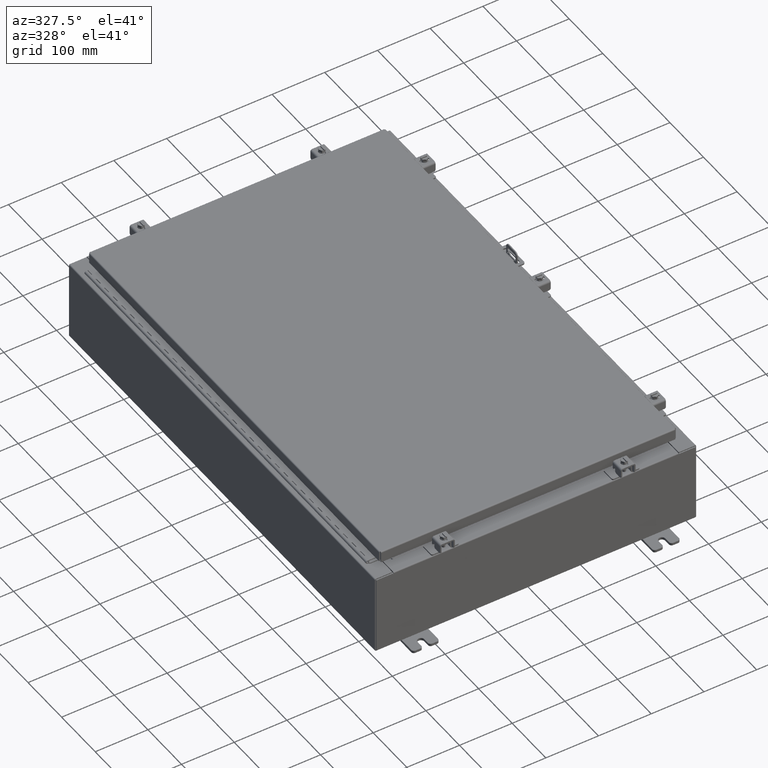
[diagram: clean part render]
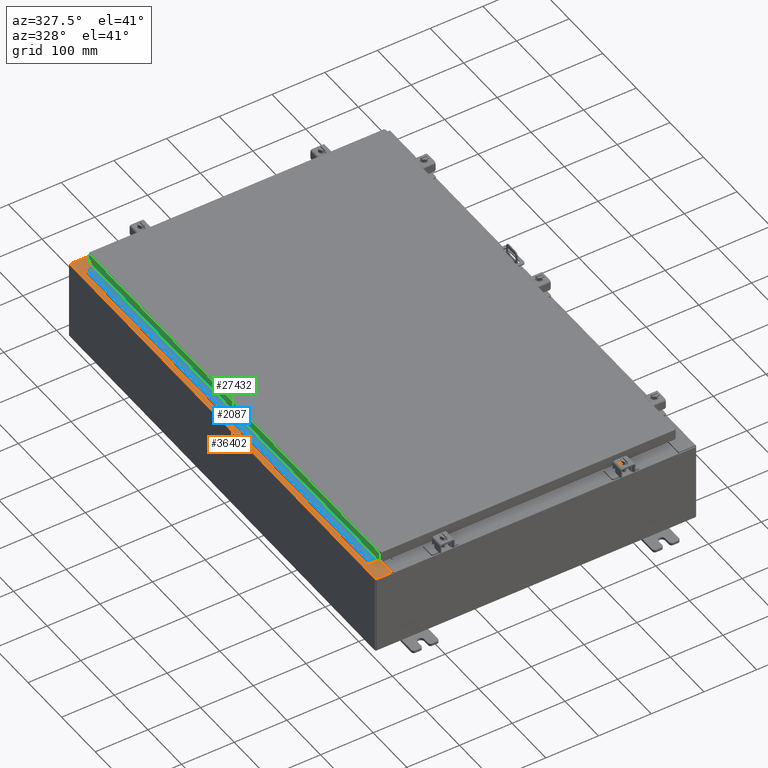
[diagram: same view with three faces highlighted in distinct colors, each labeled with its STEP entity id]
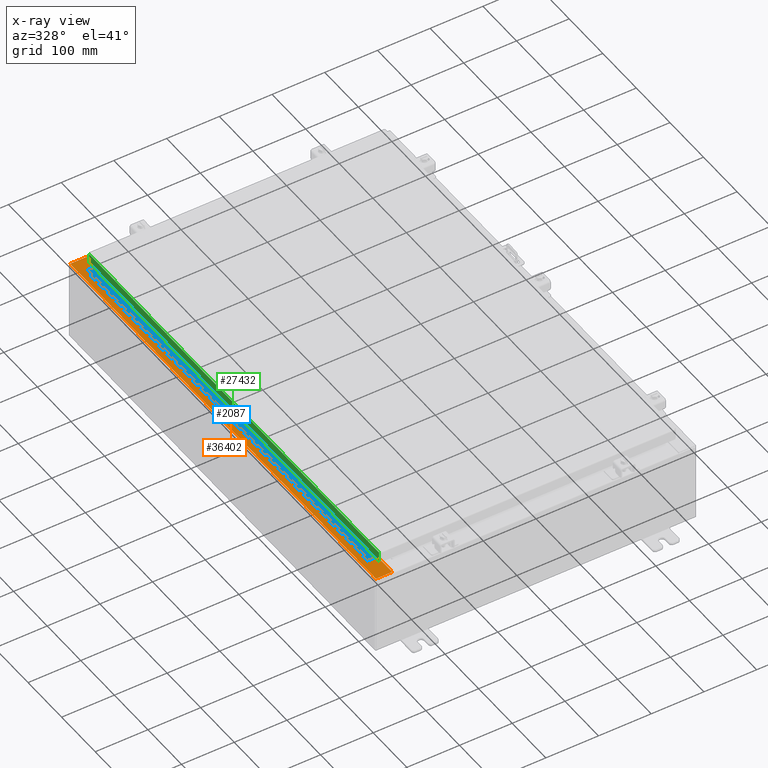
[diagram: x-ray of the same camera — body ghosted, the three highlighted faces saturated]
A machine part, auxiliary view with three faces highlighted in distinct colors.
The next image is the same camera in x-ray (body ghosted, the three faces saturated) — at least one of them is partly hidden behind the body in this view.
Their STEP definitions:

[orange] entity #36402 — the highlighted planar face has unit normal (0, 0, -1).
#1013 = LINE ( 'NONE', #26499, #15313 ) ;
#1154 = VERTEX_POINT ( 'NONE', #36882 ) ;
#1365 = DIRECTION ( 'NONE',  ( -1.000000000000000000, -4.340572780400098900E-014, 2.170286390200049500E-014 ) ) ;
#1763 = CARTESIAN_POINT ( 'NONE',  ( -4.252457061909017700E-014, 17.92529999999999600, 5.925300000000084400 ) ) ;
#1994 = ORIENTED_EDGE ( 'NONE', *, *, #8896, .F. ) ;
#2029 = CARTESIAN_POINT ( 'NONE',  ( -10.75005000000002100, -16.63110000000000400, 5.925300000000008000 ) ) ;
#2519 = EDGE_CURVE ( 'NONE', #36619, #40554, #6549, .T. ) ;
#2976 = DIRECTION ( 'NONE',  ( -1.000000000000000000, 0.0000000000000000000, 0.0000000000000000000 ) ) ;
#4384 = EDGE_CURVE ( 'NONE', #27516, #11991, #34377, .T. ) ;
#4635 = DIRECTION ( 'NONE',  ( 7.132762385546384700E-015, 0.0000000000000000000, -1.000000000000000000 ) ) ;
#4925 = CIRCLE ( 'NONE', #9031, 0.01867499999999949400 ) ;
#4991 = ORIENTED_EDGE ( 'NONE', *, *, #32506, .F. ) ;
#5025 = DIRECTION ( 'NONE',  ( -1.000000000000000000, -2.717614574405841100E-032, -7.132762385546384700E-015 ) ) ;
#5495 = CARTESIAN_POINT ( 'NONE',  ( -10.69970000000002100, 16.63110000000000000, 5.925300000000008000 ) ) ;
#5665 = DIRECTION ( 'NONE',  ( -2.076025640262915200E-031, 1.000000000000000000, -1.480779759829717100E-045 ) ) ;
#5987 = CARTESIAN_POINT ( 'NONE',  ( -11.91230000000002000, -17.92530000000000400, 5.925299999999999100 ) ) ;
#6123 = EDGE_CURVE ( 'NONE', #36619, #1154, #37722, .T. ) ;
#6549 = LINE ( 'NONE', #27022, #22795 ) ;
#6689 = EDGE_CURVE ( 'NONE', #24575, #8248, #1013, .T. ) ;
#7422 = EDGE_CURVE ( 'NONE', #21129, #24575, #32006, .T. ) ;
#8201 = ORIENTED_EDGE ( 'NONE', *, *, #4384, .F. ) ;
#8248 = VERTEX_POINT ( 'NONE', #10649 ) ;
#8896 = EDGE_CURVE ( 'NONE', #40554, #27516, #38060, .T. ) ;
#9031 = AXIS2_PLACEMENT_3D ( 'NONE', #38911, #19428, #42172 ) ;
#9250 = ORIENTED_EDGE ( 'NONE', *, *, #18265, .F. ) ;
#9258 = DIRECTION ( 'NONE',  ( -0.0000000000000000000, -1.000000000000000000, -0.0000000000000000000 ) ) ;
#9679 = EDGE_CURVE ( 'NONE', #32147, #29935, #16578, .T. ) ;
#10441 = CARTESIAN_POINT ( 'NONE',  ( -10.69970000000002100, -2.221285154312107200E-030, 5.925300000000008000 ) ) ;
#10649 = CARTESIAN_POINT ( 'NONE',  ( -10.69970000000002100, -16.63110000000000700, 5.925300000000008000 ) ) ;
#11426 = DIRECTION ( 'NONE',  ( -7.132762385546384700E-015, -0.0000000000000000000, 1.000000000000000000 ) ) ;
#11991 = VERTEX_POINT ( 'NONE', #35949 ) ;
#12042 = LINE ( 'NONE', #38669, #39019 ) ;
#12826 = DIRECTION ( 'NONE',  ( 1.000000000000000000, 0.0000000000000000000, 0.0000000000000000000 ) ) ;
#13003 = VERTEX_POINT ( 'NONE', #2029 ) ;
#14119 = EDGE_CURVE ( 'NONE', #1154, #24096, #40714, .T. ) ;
#14734 = ORIENTED_EDGE ( 'NONE', *, *, #9679, .F. ) ;
#14788 = VECTOR ( 'NONE', #5025, 39.37007874015748100 ) ;
#15313 = VECTOR ( 'NONE', #5665, 39.37007874015748100 ) ;
#15634 = VECTOR ( 'NONE', #28737, 39.37007874015748100 ) ;
#16280 = ORIENTED_EDGE ( 'NONE', *, *, #7422, .T. ) ;
#16466 = CARTESIAN_POINT ( 'NONE',  ( -11.91230000000002000, 17.92529999999999600, 5.925299999999999100 ) ) ;
#16578 = LINE ( 'NONE', #41941, #41469 ) ;
#16665 = LINE ( 'NONE', #41735, #15634 ) ;
#17373 = CARTESIAN_POINT ( 'NONE',  ( -10.71270000000002100, -16.59375000000000400, 5.925300000000009800 ) ) ;
#17639 = DIRECTION ( 'NONE',  ( -2.076025640262915200E-031, 1.000000000000000000, -1.480779759829717100E-045 ) ) ;
#17653 = ORIENTED_EDGE ( 'NONE', *, *, #14119, .T. ) ;
#18265 = EDGE_CURVE ( 'NONE', #11991, #32147, #38376, .T. ) ;
#19428 = DIRECTION ( 'NONE',  ( -7.132762385546384700E-015, -0.0000000000000000000, 1.000000000000000000 ) ) ;
#20405 = ORIENTED_EDGE ( 'NONE', *, *, #27185, .F. ) ;
#21129 = VERTEX_POINT ( 'NONE', #5987 ) ;
#21406 = CARTESIAN_POINT ( 'NONE',  ( -10.75005000000002100, 16.59375000000000000, 5.925300000000008000 ) ) ;
#22424 = DIRECTION ( 'NONE',  ( -0.0000000000000000000, 1.000000000000000000, -0.0000000000000000000 ) ) ;
#22795 = VECTOR ( 'NONE', #1365, 39.37007874015748100 ) ;
#24096 = VERTEX_POINT ( 'NONE', #16466 ) ;
#24575 = VERTEX_POINT ( 'NONE', #25311 ) ;
#25311 = CARTESIAN_POINT ( 'NONE',  ( -10.69970000000002100, -17.92530000000000400, 5.925300000000008000 ) ) ;
#26089 = AXIS2_PLACEMENT_3D ( 'NONE', #30859, #11426, #34160 ) ;
#26499 = CARTESIAN_POINT ( 'NONE',  ( -10.69970000000002100, -2.221285154312107200E-030, 5.925300000000008000 ) ) ;
#27007 = FACE_OUTER_BOUND ( 'NONE', #40515, .T. ) ;
#27022 = CARTESIAN_POINT ( 'NONE',  ( -10.69970000000002100, 16.63110000000000000, 5.925300000000008900 ) ) ;
#27185 = EDGE_CURVE ( 'NONE', #21129, #24096, #12042, .T. ) ;
#27347 = DIRECTION ( 'NONE',  ( -1.000000000000000000, 0.0000000000000000000, -7.132762385546384700E-015 ) ) ;
#27516 = VERTEX_POINT ( 'NONE', #21406 ) ;
#28737 = DIRECTION ( 'NONE',  ( 1.000000000000000000, -4.340572780400098900E-014, -2.170286390200049500E-014 ) ) ;
#29935 = VERTEX_POINT ( 'NONE', #30868 ) ;
#30497 = CARTESIAN_POINT ( 'NONE',  ( -4.252457061909017700E-014, 0.0000000000000000000, 5.925300000000084400 ) ) ;
#30859 = CARTESIAN_POINT ( 'NONE',  ( -10.75005000000002100, 16.61242499999999800, 5.925300000000009800 ) ) ;
#30868 = CARTESIAN_POINT ( 'NONE',  ( -10.75005000000002100, -16.59375000000000400, 5.925300000000008000 ) ) ;
#32006 = LINE ( 'NONE', #34252, #33016 ) ;
#32147 = VERTEX_POINT ( 'NONE', #17373 ) ;
#32340 = VECTOR ( 'NONE', #12826, 39.37007874015748100 ) ;
#32506 = EDGE_CURVE ( 'NONE', #13003, #8248, #16665, .T. ) ;
#33016 = VECTOR ( 'NONE', #38992, 39.37007874015748100 ) ;
#33248 = ORIENTED_EDGE ( 'NONE', *, *, #39120, .F. ) ;
#34160 = DIRECTION ( 'NONE',  ( 1.000000000000000000, 0.0000000000000000000, 0.0000000000000000000 ) ) ;
#34252 = CARTESIAN_POINT ( 'NONE',  ( -4.252457061909017700E-014, -17.92530000000000400, 5.925300000000084400 ) ) ;
#34377 = LINE ( 'NONE', #38364, #32340 ) ;
#34457 = CARTESIAN_POINT ( 'NONE',  ( -10.75005000000002100, 16.63110000000000000, 5.925300000000008000 ) ) ;
#35949 = CARTESIAN_POINT ( 'NONE',  ( -10.71270000000002100, 16.59375000000000000, 5.925300000000009800 ) ) ;
#36402 = ADVANCED_FACE ( 'NONE', ( #27007 ), #37077, .F. ) ;
#36619 = VERTEX_POINT ( 'NONE', #5495 ) ;
#36688 = VECTOR ( 'NONE', #17639, 39.37007874015748100 ) ;
#36882 = CARTESIAN_POINT ( 'NONE',  ( -10.69970000000002100, 17.92529999999999600, 5.925300000000008000 ) ) ;
#37077 = PLANE ( 'NONE',  #37700 ) ;
#37351 = VECTOR ( 'NONE', #9258, 39.37007874015748100 ) ;
#37700 = AXIS2_PLACEMENT_3D ( 'NONE', #30497, #4635, #27347 ) ;
#37722 = LINE ( 'NONE', #10441, #36688 ) ;
#38060 = CIRCLE ( 'NONE', #26089, 0.01867499999999949400 ) ;
#38364 = CARTESIAN_POINT ( 'NONE',  ( -10.75005000000002100, 16.59375000000000000, 5.925300000000009800 ) ) ;
#38376 = LINE ( 'NONE', #38412, #37351 ) ;
#38412 = CARTESIAN_POINT ( 'NONE',  ( -10.71270000000002100, 16.59375000000000000, 5.925300000000009800 ) ) ;
#38669 = CARTESIAN_POINT ( 'NONE',  ( -11.91230000000002000, 17.92529999999999600, 5.925299999999999100 ) ) ;
#38911 = CARTESIAN_POINT ( 'NONE',  ( -10.75005000000002100, -16.61242500000000200, 5.925300000000009800 ) ) ;
#38971 = ORIENTED_EDGE ( 'NONE', *, *, #6689, .T. ) ;
#38992 = DIRECTION ( 'NONE',  ( 1.000000000000000000, -4.379057701015054300E-047, 7.132762385546384700E-015 ) ) ;
#39019 = VECTOR ( 'NONE', #22424, 39.37007874015748100 ) ;
#39120 = EDGE_CURVE ( 'NONE', #29935, #13003, #4925, .T. ) ;
#39538 = ORIENTED_EDGE ( 'NONE', *, *, #2519, .F. ) ;
#39733 = ORIENTED_EDGE ( 'NONE', *, *, #6123, .T. ) ;
#40515 = EDGE_LOOP ( 'NONE', ( #39538, #39733, #17653, #20405, #16280, #38971, #4991, #33248, #14734, #9250, #8201, #1994 ) ) ;
#40554 = VERTEX_POINT ( 'NONE', #34457 ) ;
#40714 = LINE ( 'NONE', #1763, #14788 ) ;
#41469 = VECTOR ( 'NONE', #2976, 39.37007874015748100 ) ;
#41735 = CARTESIAN_POINT ( 'NONE',  ( -10.75005000000002100, -16.63110000000000400, 5.925300000000009800 ) ) ;
#41941 = CARTESIAN_POINT ( 'NONE',  ( -10.71270000000002100, -16.59375000000000400, 5.925300000000009800 ) ) ;
#42172 = DIRECTION ( 'NONE',  ( 1.000000000000000000, 0.0000000000000000000, 0.0000000000000000000 ) ) ;

[blue] entity #2087 — the highlighted planar face has unit normal (-0, -0, 1).
#3 = CARTESIAN_POINT ( 'NONE',  ( -0.6869999999999982800, 0.5504999999999997700, -10.00000000000000000 ) ) ;
#22 = VECTOR ( 'NONE', #19454, 39.37007874015748100 ) ;
#114 = DIRECTION ( 'NONE',  ( 0.0000000000000000000, -0.0000000000000000000, -1.000000000000000000 ) ) ;
#116 = DIRECTION ( 'NONE',  ( 0.0000000000000000000, -0.0000000000000000000, -1.000000000000000000 ) ) ;
#119 = VERTEX_POINT ( 'NONE', #35599 ) ;
#263 = EDGE_CURVE ( 'NONE', #6097, #13717, #37951, .T. ) ;
#273 = CARTESIAN_POINT ( 'NONE',  ( -0.6869999999999973900, 0.8004999999999995500, -23.50000000000000000 ) ) ;
#275 = ORIENTED_EDGE ( 'NONE', *, *, #9747, .T. ) ;
#311 = LINE ( 'NONE', #12548, #2340 ) ;
#343 = VERTEX_POINT ( 'NONE', #19113 ) ;
#356 = PLANE ( 'NONE',  #25235 ) ;
#400 = CARTESIAN_POINT ( 'NONE',  ( -0.6869999999999978300, 0.6754999999999996600, -21.00000000000000000 ) ) ;
#401 = LINE ( 'NONE', #26348, #16730 ) ;
#419 = CARTESIAN_POINT ( 'NONE',  ( -0.6869999999999973900, 0.8004999999999995500, -28.50000000000000000 ) ) ;
#432 = LINE ( 'NONE', #35672, #41657 ) ;
#489 = EDGE_CURVE ( 'NONE', #30153, #2880, #39028, .T. ) ;
#501 = CARTESIAN_POINT ( 'NONE',  ( -0.6869999999999978300, 0.6754999999999996600, -33.00000000000000000 ) ) ;
#516 = EDGE_CURVE ( 'NONE', #39131, #31006, #30313, .T. ) ;
#535 = VECTOR ( 'NONE', #38947, 39.37007874015748100 ) ;
#571 = CARTESIAN_POINT ( 'NONE',  ( -0.6869999999999978300, 0.6754999999999996600, -18.50000000000000000 ) ) ;
#624 = DIRECTION ( 'NONE',  ( 0.0000000000000000000, 0.0000000000000000000, 1.000000000000000000 ) ) ;
#719 = VECTOR ( 'NONE', #18771, 39.37007874015748100 ) ;
#729 = EDGE_CURVE ( 'NONE', #6816, #9452, #30809, .T. ) ;
#743 = CARTESIAN_POINT ( 'NONE',  ( -0.6869999999999982800, 0.5504999999999997700, -1.499999999999999800 ) ) ;
#760 = CARTESIAN_POINT ( 'NONE',  ( -0.6869999999999982800, 0.5504999999999997700, -21.50000000000000400 ) ) ;
#795 = DIRECTION ( 'NONE',  ( 3.389037039080723100E-015, 1.000000000000000000, -0.0000000000000000000 ) ) ;
#801 = EDGE_CURVE ( 'NONE', #15209, #36865, #12552, .T. ) ;
#917 = LINE ( 'NONE', #1691, #34510 ) ;
#946 = EDGE_CURVE ( 'NONE', #20032, #31203, #16138, .T. ) ;
#1122 = ORIENTED_EDGE ( 'NONE', *, *, #27241, .F. ) ;
#1162 = VECTOR ( 'NONE', #32333, 39.37007874015748100 ) ;
#1196 = EDGE_CURVE ( 'NONE', #23665, #35758, #1294, .T. ) ;
#1241 = LINE ( 'NONE', #22308, #8892 ) ;
#1287 = LINE ( 'NONE', #19236, #17608 ) ;
#1294 = LINE ( 'NONE', #35494, #39470 ) ;
#1327 = VECTOR ( 'NONE', #38943, 39.37007874015748100 ) ;
#1364 = VERTEX_POINT ( 'NONE', #36052 ) ;
#1366 = ORIENTED_EDGE ( 'NONE', *, *, #19470, .F. ) ;
#1489 = VERTEX_POINT ( 'NONE', #3 ) ;
#1574 = DIRECTION ( 'NONE',  ( 0.0000000000000000000, -0.0000000000000000000, -1.000000000000000000 ) ) ;
#1580 = VERTEX_POINT ( 'NONE', #571 ) ;
#1594 = ORIENTED_EDGE ( 'NONE', *, *, #19589, .F. ) ;
#1601 = CARTESIAN_POINT ( 'NONE',  ( -0.6869999999999978300, 0.6754999999999996600, -14.99999999999999800 ) ) ;
#1613 = CARTESIAN_POINT ( 'NONE',  ( -0.6869999999999973900, 0.8004999999999995500, -20.00000000000000000 ) ) ;
#1682 = CARTESIAN_POINT ( 'NONE',  ( -0.6869999999999973900, 0.8004999999999995500, -15.50000000000000000 ) ) ;
#1685 = CARTESIAN_POINT ( 'NONE',  ( -0.6869999999999973900, 0.8004999999999995500, -16.50000000000000000 ) ) ;
#1691 = CARTESIAN_POINT ( 'NONE',  ( -0.6869999999999982800, 0.5504999999999997700, -2.500000000000000000 ) ) ;
#1730 = DIRECTION ( 'NONE',  ( 3.389037039080723100E-015, 1.000000000000000000, -0.0000000000000000000 ) ) ;
#1777 = LINE ( 'NONE', #25851, #19108 ) ;
#1790 = CARTESIAN_POINT ( 'NONE',  ( -0.6869999999999973900, 0.8004999999999995500, -6.000000000000000900 ) ) ;
#1817 = DIRECTION ( 'NONE',  ( 3.389037039080723100E-015, 1.000000000000000000, -0.0000000000000000000 ) ) ;
#1846 = CARTESIAN_POINT ( 'NONE',  ( -0.6869999999999978300, 0.6754999999999996600, -25.50000000000000400 ) ) ;
#1859 = CARTESIAN_POINT ( 'NONE',  ( -0.6869999999999982800, 0.5504999999999997700, -7.499999999999999100 ) ) ;
#1969 = CARTESIAN_POINT ( 'NONE',  ( -0.6869999999999978300, 0.6754999999999996600, -33.00000000000000000 ) ) ;
#1970 = VERTEX_POINT ( 'NONE', #24722 ) ;
#1988 = CARTESIAN_POINT ( 'NONE',  ( -0.6869999999999978300, 0.6754999999999996600, -33.00000000000000000 ) ) ;
#1997 = CARTESIAN_POINT ( 'NONE',  ( -0.6869999999999982800, 0.5504999999999997700, -7.499999999999999100 ) ) ;
#2007 = EDGE_CURVE ( 'NONE', #12668, #3999, #2238, .T. ) ;
#2013 = DIRECTION ( 'NONE',  ( 0.0000000000000000000, 0.0000000000000000000, 1.000000000000000000 ) ) ;
#2015 = EDGE_CURVE ( 'NONE', #1364, #14661, #28153, .T. ) ;
#2074 = VECTOR ( 'NONE', #40067, 39.37007874015748100 ) ;
#2087 = ADVANCED_FACE ( 'NONE', ( #16544 ), #356, .T. ) ;
#2115 = DIRECTION ( 'NONE',  ( 0.0000000000000000000, -0.0000000000000000000, -1.000000000000000000 ) ) ;
#2156 = VERTEX_POINT ( 'NONE', #19390 ) ;
#2174 = VERTEX_POINT ( 'NONE', #35768 ) ;
#2203 = VERTEX_POINT ( 'NONE', #26993 ) ;
#2206 = DIRECTION ( 'NONE',  ( 3.369016658928398200E-015, 1.000000000000000000, 0.0000000000000000000 ) ) ;
#2207 = VERTEX_POINT ( 'NONE', #3024 ) ;
#2232 = VECTOR ( 'NONE', #1817, 39.37007874015748100 ) ;
#2238 = LINE ( 'NONE', #30924, #35829 ) ;
#2258 = CARTESIAN_POINT ( 'NONE',  ( -0.6869999999999978300, 0.6754999999999996600, -6.000000000000000900 ) ) ;
#2314 = VECTOR ( 'NONE', #6471, 39.37007874015748100 ) ;
#2340 = VECTOR ( 'NONE', #2855, 39.37007874015748100 ) ;
#2458 = CARTESIAN_POINT ( 'NONE',  ( -0.6869999999999973900, 0.8004999999999995500, -9.000000000000000000 ) ) ;
#2535 = EDGE_CURVE ( 'NONE', #13563, #119, #21793, .T. ) ;
#2539 = DIRECTION ( 'NONE',  ( 0.0000000000000000000, 0.0000000000000000000, 1.000000000000000000 ) ) ;
#2762 = EDGE_CURVE ( 'NONE', #39914, #19850, #7032, .T. ) ;
#2807 = VECTOR ( 'NONE', #16900, 39.37007874015748100 ) ;
#2831 = VERTEX_POINT ( 'NONE', #12195 ) ;
#2855 = DIRECTION ( 'NONE',  ( -3.389037039080723100E-015, -1.000000000000000000, 0.0000000000000000000 ) ) ;
#2863 = VERTEX_POINT ( 'NONE', #12721 ) ;
#2880 = VERTEX_POINT ( 'NONE', #28727 ) ;
#2885 = EDGE_CURVE ( 'NONE', #11214, #13543, #25812, .T. ) ;
#2915 = EDGE_CURVE ( 'NONE', #7763, #28889, #16239, .T. ) ;
#2929 = VECTOR ( 'NONE', #4873, 39.37007874015748100 ) ;
#2934 = ORIENTED_EDGE ( 'NONE', *, *, #3180, .F. ) ;
#2936 = ORIENTED_EDGE ( 'NONE', *, *, #37779, .T. ) ;
#2951 = DIRECTION ( 'NONE',  ( 0.0000000000000000000, -0.0000000000000000000, -1.000000000000000000 ) ) ;
#2952 = DIRECTION ( 'NONE',  ( -3.389037039080723100E-015, -1.000000000000000000, 0.0000000000000000000 ) ) ;
#2986 = LINE ( 'NONE', #35853, #26861 ) ;
#2999 = DIRECTION ( 'NONE',  ( 0.0000000000000000000, -0.0000000000000000000, -1.000000000000000000 ) ) ;
#3004 = CARTESIAN_POINT ( 'NONE',  ( -0.6869999999999982800, 0.5504999999999997700, -20.50000000000000400 ) ) ;
#3005 = EDGE_CURVE ( 'NONE', #20032, #8309, #41115, .T. ) ;
#3024 = CARTESIAN_POINT ( 'NONE',  ( -0.6869999999999978300, 0.6754999999999996600, -31.50000000000000400 ) ) ;
#3035 = VERTEX_POINT ( 'NONE', #41863 ) ;
#3124 = LINE ( 'NONE', #31117, #29056 ) ;
#3180 = EDGE_CURVE ( 'NONE', #18330, #17315, #6986, .T. ) ;
#3199 = LINE ( 'NONE', #31154, #28093 ) ;
#3215 = CARTESIAN_POINT ( 'NONE',  ( -0.6869999999999978300, 0.6754999999999996600, -26.00000000000000000 ) ) ;
#3228 = DIRECTION ( 'NONE',  ( 3.389037039080723100E-015, 1.000000000000000000, -0.0000000000000000000 ) ) ;
#3331 = DIRECTION ( 'NONE',  ( 0.0000000000000000000, 0.0000000000000000000, 1.000000000000000000 ) ) ;
#3435 = EDGE_CURVE ( 'NONE', #2207, #2831, #24767, .T. ) ;
#3470 = CARTESIAN_POINT ( 'NONE',  ( -0.6869999999999973900, 0.8004999999999995500, -25.50000000000000400 ) ) ;
#3480 = VECTOR ( 'NONE', #24557, 39.37007874015748100 ) ;
#3495 = ORIENTED_EDGE ( 'NONE', *, *, #25331, .T. ) ;
#3580 = ORIENTED_EDGE ( 'NONE', *, *, #2015, .F. ) ;
#3583 = CARTESIAN_POINT ( 'NONE',  ( -0.6869999999999978300, 0.6754999999999996600, -22.50000000000000000 ) ) ;
#3587 = VECTOR ( 'NONE', #40103, 39.37007874015748100 ) ;
#3607 = CARTESIAN_POINT ( 'NONE',  ( -0.6869999999999982800, 0.5504999999999997700, -9.500000000000000000 ) ) ;
#3624 = DIRECTION ( 'NONE',  ( 3.389037039080723100E-015, 1.000000000000000000, -0.0000000000000000000 ) ) ;
#3640 = VERTEX_POINT ( 'NONE', #37946 ) ;
#3648 = CARTESIAN_POINT ( 'NONE',  ( -0.6869999999999973900, 0.8004999999999995500, -5.500000000000000000 ) ) ;
#3673 = EDGE_CURVE ( 'NONE', #32735, #35241, #6951, .T. ) ;
#3678 = DIRECTION ( 'NONE',  ( 0.0000000000000000000, 0.0000000000000000000, 1.000000000000000000 ) ) ;
#3689 = EDGE_CURVE ( 'NONE', #18787, #37243, #23201, .T. ) ;
#3700 = ORIENTED_EDGE ( 'NONE', *, *, #729, .T. ) ;
#3723 = VERTEX_POINT ( 'NONE', #19972 ) ;
#3752 = DIRECTION ( 'NONE',  ( 3.389037039080723100E-015, 1.000000000000000000, -0.0000000000000000000 ) ) ;
#3758 = EDGE_CURVE ( 'NONE', #40370, #38696, #12572, .T. ) ;
#3809 = CARTESIAN_POINT ( 'NONE',  ( -0.6869999999999978300, 0.6754999999999996600, -33.00000000000000000 ) ) ;
#3874 = DIRECTION ( 'NONE',  ( 3.389037039080723100E-015, 1.000000000000000000, -0.0000000000000000000 ) ) ;
#3935 = EDGE_CURVE ( 'NONE', #30702, #19850, #24719, .T. ) ;
#3944 = VECTOR ( 'NONE', #25257, 39.37007874015748100 ) ;
#3948 = EDGE_CURVE ( 'NONE', #2156, #3999, #23691, .T. ) ;
#3992 = DIRECTION ( 'NONE',  ( 0.0000000000000000000, 0.0000000000000000000, 1.000000000000000000 ) ) ;
#3999 = VERTEX_POINT ( 'NONE', #21910 ) ;
#4011 = ORIENTED_EDGE ( 'NONE', *, *, #26778, .F. ) ;
#4019 = VERTEX_POINT ( 'NONE', #35141 ) ;
#4104 = CARTESIAN_POINT ( 'NONE',  ( -0.6869999999999973900, 0.8004999999999995500, -4.500000000000000000 ) ) ;
#4141 = EDGE_CURVE ( 'NONE', #26947, #25900, #311, .T. ) ;
#4217 = CARTESIAN_POINT ( 'NONE',  ( -0.6869999999999978300, 0.6754999999999996600, -10.50000000000000000 ) ) ;
#4307 = EDGE_CURVE ( 'NONE', #19009, #2174, #27716, .T. ) ;
#4379 = CARTESIAN_POINT ( 'NONE',  ( -0.6869999999999982800, 0.5504999999999997700, -8.500000000000000000 ) ) ;
#4393 = VECTOR ( 'NONE', #27202, 39.37007874015748100 ) ;
#4405 = CARTESIAN_POINT ( 'NONE',  ( -0.6869999999999982800, 0.5504999999999997700, -31.50000000000000400 ) ) ;
#4458 = VECTOR ( 'NONE', #34923, 39.37007874015748100 ) ;
#4519 = CARTESIAN_POINT ( 'NONE',  ( -0.6869999999999978300, 0.6754999999999996600, -33.00000000000000000 ) ) ;
#4527 = ORIENTED_EDGE ( 'NONE', *, *, #2762, .T. ) ;
#4544 = VERTEX_POINT ( 'NONE', #38659 ) ;
#4556 = LINE ( 'NONE', #4104, #27415 ) ;
#4626 = VECTOR ( 'NONE', #28951, 39.37007874015748100 ) ;
#4744 = EDGE_CURVE ( 'NONE', #11242, #31203, #12480, .T. ) ;
#4742 = LINE ( 'NONE', #39445, #12411 ) ;
#4811 = ORIENTED_EDGE ( 'NONE', *, *, #34897, .T. ) ;
#4873 = DIRECTION ( 'NONE',  ( 3.389037039080723100E-015, 1.000000000000000000, -0.0000000000000000000 ) ) ;
#4880 = EDGE_CURVE ( 'NONE', #31929, #16395, #23613, .T. ) ;
#4958 = CARTESIAN_POINT ( 'NONE',  ( -0.6869999999999973900, 0.8004999999999995500, -6.499999999999999100 ) ) ;
#4978 = VERTEX_POINT ( 'NONE', #31383 ) ;
#4992 = LINE ( 'NONE', #419, #38620 ) ;
#5010 = LINE ( 'NONE', #3004, #37608 ) ;
#5081 = ORIENTED_EDGE ( 'NONE', *, *, #8725, .F. ) ;
#5135 = EDGE_CURVE ( 'NONE', #32513, #11646, #14496, .T. ) ;
#5164 = ORIENTED_EDGE ( 'NONE', *, *, #21588, .T. ) ;
#5216 = VERTEX_POINT ( 'NONE', #9990 ) ;
#5218 = EDGE_CURVE ( 'NONE', #2174, #39115, #29672, .T. ) ;
#5251 = CARTESIAN_POINT ( 'NONE',  ( -0.6869999999999982800, 0.5504999999999997700, -1.000000000000000000 ) ) ;
#5285 = CARTESIAN_POINT ( 'NONE',  ( -0.6869999999999982800, 0.5504999999999997700, -32.50000000000000000 ) ) ;
#5304 = CARTESIAN_POINT ( 'NONE',  ( -0.6869999999999982800, 0.5504999999999997700, -16.50000000000000000 ) ) ;
#5345 = CARTESIAN_POINT ( 'NONE',  ( -0.6869999999999978300, 0.6754999999999996600, -22.00000000000000000 ) ) ;
#5362 = EDGE_CURVE ( 'NONE', #23153, #31003, #23569, .T. ) ;
#5414 = VECTOR ( 'NONE', #22003, 39.37007874015748100 ) ;
#5463 = VERTEX_POINT ( 'NONE', #5304 ) ;
#5516 = VECTOR ( 'NONE', #23425, 39.37007874015748100 ) ;
#5576 = VERTEX_POINT ( 'NONE', #27039 ) ;
#5577 = VECTOR ( 'NONE', #39324, 39.37007874015748100 ) ;
#5618 = ORIENTED_EDGE ( 'NONE', *, *, #31895, .F. ) ;
#5631 = EDGE_CURVE ( 'NONE', #2863, #22513, #6783, .T. ) ;
#5660 = LINE ( 'NONE', #38682, #4626 ) ;
#5682 = ORIENTED_EDGE ( 'NONE', *, *, #6528, .T. ) ;
#5728 = EDGE_CURVE ( 'NONE', #30153, #28155, #9332, .T. ) ;
#5759 = ORIENTED_EDGE ( 'NONE', *, *, #16745, .T. ) ;
#5799 = CARTESIAN_POINT ( 'NONE',  ( -0.6869999999999973900, 0.8004999999999995500, -12.49999999999999800 ) ) ;
#5817 = VERTEX_POINT ( 'NONE', #37802 ) ;
#5825 = VECTOR ( 'NONE', #22984, 39.37007874015748100 ) ;
#5857 = LINE ( 'NONE', #19388, #30751 ) ;
#5884 = CARTESIAN_POINT ( 'NONE',  ( -0.6869999999999978300, 0.6754999999999996600, -20.50000000000000400 ) ) ;
#5923 = DIRECTION ( 'NONE',  ( 3.369016658928398200E-015, 1.000000000000000000, 0.0000000000000000000 ) ) ;
#5944 = ORIENTED_EDGE ( 'NONE', *, *, #27685, .T. ) ;
#6097 = VERTEX_POINT ( 'NONE', #23087 ) ;
#6148 = ORIENTED_EDGE ( 'NONE', *, *, #38269, .T. ) ;
#6155 = CARTESIAN_POINT ( 'NONE',  ( -0.6870000000000022800, -0.6245000000000003900, 0.0000000000000000000 ) ) ;
#6219 = VERTEX_POINT ( 'NONE', #40923 ) ;
#6225 = CARTESIAN_POINT ( 'NONE',  ( -0.6869999999999982800, 0.5504999999999997700, -5.000000000000000000 ) ) ;
#6261 = DIRECTION ( 'NONE',  ( 0.0000000000000000000, -0.0000000000000000000, -1.000000000000000000 ) ) ;
#6324 = CARTESIAN_POINT ( 'NONE',  ( -0.6869999999999978300, 0.6754999999999996600, -24.50000000000000000 ) ) ;
#6327 = EDGE_CURVE ( 'NONE', #26015, #31315, #20866, .T. ) ;
#6367 = CARTESIAN_POINT ( 'NONE',  ( -0.6869999999999978300, 0.6754999999999996600, -28.50000000000000000 ) ) ;
#6394 = EDGE_CURVE ( 'NONE', #29856, #29965, #34112, .T. ) ;
#6395 = VECTOR ( 'NONE', #31787, 39.37007874015748100 ) ;
#6401 = CARTESIAN_POINT ( 'NONE',  ( -0.6869999999999982800, 0.5504999999999997700, -21.50000000000000400 ) ) ;
#6423 = VECTOR ( 'NONE', #41270, 39.37007874015748100 ) ;
#6437 = DIRECTION ( 'NONE',  ( 0.0000000000000000000, -0.0000000000000000000, -1.000000000000000000 ) ) ;
#6468 = VECTOR ( 'NONE', #3678, 39.37007874015748100 ) ;
#6471 = DIRECTION ( 'NONE',  ( 0.0000000000000000000, 0.0000000000000000000, 1.000000000000000000 ) ) ;
#6512 = CARTESIAN_POINT ( 'NONE',  ( -0.6869999999999978300, 0.6754999999999996600, -33.00000000000000000 ) ) ;
#6519 = CARTESIAN_POINT ( 'NONE',  ( -0.6869999999999982800, 0.5504999999999997700, -27.00000000000000000 ) ) ;
#6528 = EDGE_CURVE ( 'NONE', #4544, #5817, #38716, .T. ) ;
#6543 = LINE ( 'NONE', #13816, #5516 ) ;
#6565 = EDGE_CURVE ( 'NONE', #39914, #24624, #28988, .T. ) ;
#6589 = CARTESIAN_POINT ( 'NONE',  ( -0.6869999999999982800, 0.5504999999999997700, -28.00000000000000000 ) ) ;
#6674 = EDGE_CURVE ( 'NONE', #7879, #40370, #33578, .T. ) ;
#6783 = LINE ( 'NONE', #6155, #38348 ) ;
#6816 = VERTEX_POINT ( 'NONE', #6367 ) ;
#6838 = DIRECTION ( 'NONE',  ( 0.0000000000000000000, 0.0000000000000000000, 1.000000000000000000 ) ) ;
#6951 = LINE ( 'NONE', #10881, #7957 ) ;
#6986 = LINE ( 'NONE', #20059, #7999 ) ;
#7032 = LINE ( 'NONE', #34310, #29881 ) ;
#7125 = EDGE_CURVE ( 'NONE', #10504, #2863, #25886, .T. ) ;
#7216 = EDGE_CURVE ( 'NONE', #12102, #13717, #14234, .T. ) ;
#7234 = ORIENTED_EDGE ( 'NONE', *, *, #15697, .F. ) ;
#7247 = VERTEX_POINT ( 'NONE', #15250 ) ;
#7258 = VERTEX_POINT ( 'NONE', #29229 ) ;
#7294 = VECTOR ( 'NONE', #33268, 39.37007874015748100 ) ;
#7311 = VERTEX_POINT ( 'NONE', #32016 ) ;
#7341 = VERTEX_POINT ( 'NONE', #35291 ) ;
#7399 = LINE ( 'NONE', #21974, #6395 ) ;
#7428 = VECTOR ( 'NONE', #31957, 39.37007874015748100 ) ;
#7588 = VERTEX_POINT ( 'NONE', #11143 ) ;
#7635 = LINE ( 'NONE', #18967, #23913 ) ;
#7763 = VERTEX_POINT ( 'NONE', #8746 ) ;
#7787 = VERTEX_POINT ( 'NONE', #29711 ) ;
#7822 = ORIENTED_EDGE ( 'NONE', *, *, #23220, .T. ) ;
#7879 = VERTEX_POINT ( 'NONE', #36806 ) ;
#7922 = LINE ( 'NONE', #39227, #41549 ) ;
#7957 = VECTOR ( 'NONE', #15508, 39.37007874015748100 ) ;
#7963 = CARTESIAN_POINT ( 'NONE',  ( -0.6869999999999978300, 0.6754999999999996600, -11.00000000000000000 ) ) ;
#7971 = VECTOR ( 'NONE', #13815, 39.37007874015748100 ) ;
#7999 = VECTOR ( 'NONE', #21034, 39.37007874015748100 ) ;
#8032 = CARTESIAN_POINT ( 'NONE',  ( -0.6869999999999978300, 0.6754999999999996600, -27.00000000000000000 ) ) ;
#8062 = CARTESIAN_POINT ( 'NONE',  ( -0.6869999999999982800, 0.5504999999999997700, -10.50000000000000000 ) ) ;
#8092 = CARTESIAN_POINT ( 'NONE',  ( -0.6869999999999978300, 0.6754999999999996600, -27.50000000000000000 ) ) ;
#8198 = DIRECTION ( 'NONE',  ( 0.0000000000000000000, 0.0000000000000000000, 1.000000000000000000 ) ) ;
#8309 = VERTEX_POINT ( 'NONE', #38688 ) ;
#8336 = DIRECTION ( 'NONE',  ( 0.0000000000000000000, 0.0000000000000000000, 1.000000000000000000 ) ) ;
#8391 = LINE ( 'NONE', #24937, #33313 ) ;
#8541 = VECTOR ( 'NONE', #28199, 39.37007874015748100 ) ;
#8558 = DIRECTION ( 'NONE',  ( -3.389037039080723100E-015, -1.000000000000000000, 0.0000000000000000000 ) ) ;
#8563 = EDGE_CURVE ( 'NONE', #22228, #23665, #432, .T. ) ;
#8593 = VERTEX_POINT ( 'NONE', #41436 ) ;
#8706 = CARTESIAN_POINT ( 'NONE',  ( -0.6869999999999982800, 0.5504999999999997700, -24.99999999999999600 ) ) ;
#8711 = CARTESIAN_POINT ( 'NONE',  ( -0.6869999999999978300, 0.6754999999999996600, -16.50000000000000000 ) ) ;
#8725 = EDGE_CURVE ( 'NONE', #30736, #12165, #10573, .T. ) ;
#8746 = CARTESIAN_POINT ( 'NONE',  ( -0.6869999999999982800, 0.5504999999999997700, -32.50000000000000000 ) ) ;
#8754 = DIRECTION ( 'NONE',  ( -3.389037039080723100E-015, -1.000000000000000000, 0.0000000000000000000 ) ) ;
#8892 = VECTOR ( 'NONE', #19199, 39.37007874015748100 ) ;
#8928 = EDGE_CURVE ( 'NONE', #7247, #27725, #37036, .T. ) ;
#8946 = CARTESIAN_POINT ( 'NONE',  ( -0.6869999999999982800, 0.5504999999999997700, -29.50000000000000000 ) ) ;
#8983 = VECTOR ( 'NONE', #30823, 39.37007874015748100 ) ;
#9068 = CARTESIAN_POINT ( 'NONE',  ( -0.6869999999999978300, 0.6754999999999996600, -5.500000000000000000 ) ) ;
#9126 = ORIENTED_EDGE ( 'NONE', *, *, #38596, .F. ) ;
#9152 = EDGE_CURVE ( 'NONE', #37412, #37591, #9951, .T. ) ;
#9174 = EDGE_CURVE ( 'NONE', #11214, #35758, #1287, .T. ) ;
#9228 = VECTOR ( 'NONE', #21159, 39.37007874015748100 ) ;
#9319 = VERTEX_POINT ( 'NONE', #39977 ) ;
#9332 = LINE ( 'NONE', #3809, #25576 ) ;
#9385 = LINE ( 'NONE', #38228, #719 ) ;
#9403 = CARTESIAN_POINT ( 'NONE',  ( -0.6869999999999978300, 0.6754999999999996600, -16.00000000000000000 ) ) ;
#9407 = CARTESIAN_POINT ( 'NONE',  ( -0.6869999999999982800, 0.5504999999999997700, -6.499999999999999100 ) ) ;
#9452 = VERTEX_POINT ( 'NONE', #40816 ) ;
#9540 = DIRECTION ( 'NONE',  ( -3.389037039080723100E-015, -1.000000000000000000, 0.0000000000000000000 ) ) ;
#9587 = CARTESIAN_POINT ( 'NONE',  ( -0.6869999999999978300, 0.6754999999999996600, -33.00000000000000000 ) ) ;
#9675 = EDGE_CURVE ( 'NONE', #20409, #41835, #1241, .T. ) ;
#9747 = EDGE_CURVE ( 'NONE', #24855, #30193, #14509, .T. ) ;
#9759 = EDGE_CURVE ( 'NONE', #23153, #23126, #29690, .T. ) ;
#9872 = VECTOR ( 'NONE', #30418, 39.37007874015748100 ) ;
#9888 = ORIENTED_EDGE ( 'NONE', *, *, #34920, .T. ) ;
#9911 = CARTESIAN_POINT ( 'NONE',  ( -0.6869999999999978300, 0.6754999999999996600, -33.00000000000000000 ) ) ;
#9951 = LINE ( 'NONE', #38718, #34882 ) ;
#9990 = CARTESIAN_POINT ( 'NONE',  ( -0.6869999999999978300, 0.6754999999999996600, -12.49999999999999800 ) ) ;
#10031 = CARTESIAN_POINT ( 'NONE',  ( -0.6869999999999973900, 0.8004999999999995500, -10.50000000000000000 ) ) ;
#10040 = LINE ( 'NONE', #32287, #26279 ) ;
#10089 = EDGE_CURVE ( 'NONE', #23908, #42053, #10888, .T. ) ;
#10110 = ORIENTED_EDGE ( 'NONE', *, *, #22784, .F. ) ;
#10190 = LINE ( 'NONE', #39503, #20850 ) ;
#10418 = CARTESIAN_POINT ( 'NONE',  ( -0.6869999999999973900, 0.8004999999999995500, -27.00000000000000000 ) ) ;
#10504 = VERTEX_POINT ( 'NONE', #23506 ) ;
#10507 = CARTESIAN_POINT ( 'NONE',  ( -0.6869999999999973900, 0.8004999999999995500, -20.50000000000000400 ) ) ;
#10508 = VECTOR ( 'NONE', #33533, 39.37007874015748100 ) ;
#10573 = LINE ( 'NONE', #10418, #35525 ) ;
#10639 = VECTOR ( 'NONE', #31109, 39.37007874015748100 ) ;
#10674 = CARTESIAN_POINT ( 'NONE',  ( -0.6869999999999973900, 0.8004999999999995500, -4.000000000000000000 ) ) ;
#10700 = ORIENTED_EDGE ( 'NONE', *, *, #24656, .F. ) ;
#10713 = VECTOR ( 'NONE', #35245, 39.37007874015748100 ) ;
#10837 = VECTOR ( 'NONE', #8558, 39.37007874015748100 ) ;
#10874 = CARTESIAN_POINT ( 'NONE',  ( -0.6869999999999978300, 0.6754999999999996600, -33.00000000000000000 ) ) ;
#10881 = CARTESIAN_POINT ( 'NONE',  ( -0.6869999999999973900, 0.8004999999999995500, -26.00000000000000000 ) ) ;
#10888 = LINE ( 'NONE', #37669, #2232 ) ;
#10914 = EDGE_CURVE ( 'NONE', #32118, #8593, #22495, .T. ) ;
#10956 = CARTESIAN_POINT ( 'NONE',  ( -0.6869999999999982800, 0.5504999999999997700, -28.50000000000000000 ) ) ;
#11022 = VECTOR ( 'NONE', #33979, 39.37007874015748100 ) ;
#11056 = ORIENTED_EDGE ( 'NONE', *, *, #6674, .F. ) ;
#11057 = DIRECTION ( 'NONE',  ( 0.0000000000000000000, 0.0000000000000000000, 1.000000000000000000 ) ) ;
#11092 = ORIENTED_EDGE ( 'NONE', *, *, #33035, .F. ) ;
#11143 = CARTESIAN_POINT ( 'NONE',  ( -0.6869999999999982800, 0.5504999999999997700, -17.99999999999999600 ) ) ;
#11191 = ORIENTED_EDGE ( 'NONE', *, *, #16463, .F. ) ;
#11214 = VERTEX_POINT ( 'NONE', #24753 ) ;
#11242 = VERTEX_POINT ( 'NONE', #8706 ) ;
#11243 = CARTESIAN_POINT ( 'NONE',  ( -0.6869999999999982800, 0.5504999999999997700, -30.50000000000000400 ) ) ;
#11252 = LINE ( 'NONE', #760, #36175 ) ;
#11348 = VECTOR ( 'NONE', #2999, 39.37007874015748100 ) ;
#11350 = ORIENTED_EDGE ( 'NONE', *, *, #20910, .T. ) ;
#11469 = LINE ( 'NONE', #39462, #2807 ) ;
#11503 = ORIENTED_EDGE ( 'NONE', *, *, #7216, .F. ) ;
#11518 = VECTOR ( 'NONE', #22115, 39.37007874015748100 ) ;
#11550 = VERTEX_POINT ( 'NONE', #36407 ) ;
#11614 = VECTOR ( 'NONE', #23171, 39.37007874015748100 ) ;
#11646 = VERTEX_POINT ( 'NONE', #36970 ) ;
#11654 = CARTESIAN_POINT ( 'NONE',  ( -0.6869999999999978300, 0.6754999999999996600, -33.00000000000000000 ) ) ;
#11676 = CARTESIAN_POINT ( 'NONE',  ( -0.6869999999999973900, 0.8004999999999995500, -29.99999999999999600 ) ) ;
#11681 = DIRECTION ( 'NONE',  ( 0.0000000000000000000, -0.0000000000000000000, -1.000000000000000000 ) ) ;
#11683 = VERTEX_POINT ( 'NONE', #14382 ) ;
#11728 = DIRECTION ( 'NONE',  ( 3.389037039080723100E-015, 1.000000000000000000, -0.0000000000000000000 ) ) ;
#11738 = EDGE_CURVE ( 'NONE', #13068, #5463, #17899, .T. ) ;
#11757 = VECTOR ( 'NONE', #11728, 39.37007874015748100 ) ;
#11786 = ORIENTED_EDGE ( 'NONE', *, *, #13766, .T. ) ;
#11927 = DIRECTION ( 'NONE',  ( 0.0000000000000000000, 0.0000000000000000000, 1.000000000000000000 ) ) ;
#11936 = EDGE_CURVE ( 'NONE', #26508, #3035, #35675, .T. ) ;
#12102 = VERTEX_POINT ( 'NONE', #17341 ) ;
#12146 = CARTESIAN_POINT ( 'NONE',  ( -0.6869999999999978300, 0.6754999999999996600, -2.999999999999999600 ) ) ;
#12165 = VERTEX_POINT ( 'NONE', #8032 ) ;
#12195 = CARTESIAN_POINT ( 'NONE',  ( -0.6869999999999978300, 0.6754999999999996600, -31.00000000000000000 ) ) ;
#12241 = DIRECTION ( 'NONE',  ( 0.0000000000000000000, 0.0000000000000000000, 1.000000000000000000 ) ) ;
#12255 = ORIENTED_EDGE ( 'NONE', *, *, #29620, .T. ) ;
#12316 = CARTESIAN_POINT ( 'NONE',  ( -0.6869999999999978300, 0.6754999999999996600, -14.49999999999999800 ) ) ;
#12411 = VECTOR ( 'NONE', #13440, 39.37007874015748100 ) ;
#12451 = CARTESIAN_POINT ( 'NONE',  ( -0.6869999999999978300, 0.6754999999999996600, -24.99999999999999600 ) ) ;
#12480 = LINE ( 'NONE', #39161, #28703 ) ;
#12486 = CARTESIAN_POINT ( 'NONE',  ( -0.6869999999999982800, 0.5504999999999997700, -15.50000000000000000 ) ) ;
#12510 = ORIENTED_EDGE ( 'NONE', *, *, #25909, .T. ) ;
#12548 = CARTESIAN_POINT ( 'NONE',  ( -0.6869999999999973900, 0.8004999999999995500, -19.50000000000000000 ) ) ;
#12552 = LINE ( 'NONE', #12759, #11518 ) ;
#12572 = LINE ( 'NONE', #12486, #21175 ) ;
#12612 = DIRECTION ( 'NONE',  ( 0.0000000000000000000, 0.0000000000000000000, 1.000000000000000000 ) ) ;
#12668 = VERTEX_POINT ( 'NONE', #25780 ) ;
#12671 = DIRECTION ( 'NONE',  ( -3.389037039080723100E-015, -1.000000000000000000, 0.0000000000000000000 ) ) ;
#12694 = DIRECTION ( 'NONE',  ( 0.0000000000000000000, -0.0000000000000000000, -1.000000000000000000 ) ) ;
#12721 = CARTESIAN_POINT ( 'NONE',  ( -0.6869999999999998300, 0.07549999999999991400, 0.0000000000000000000 ) ) ;
#12757 = CARTESIAN_POINT ( 'NONE',  ( -0.6869999999999978300, 0.6754999999999996600, -12.99999999999999800 ) ) ;
#12759 = CARTESIAN_POINT ( 'NONE',  ( -0.6869999999999978300, 0.6754999999999996600, -33.00000000000000000 ) ) ;
#12804 = EDGE_CURVE ( 'NONE', #31903, #23842, #11252, .T. ) ;
#12824 = VECTOR ( 'NONE', #27678, 39.37007874015748100 ) ;
#12850 = CARTESIAN_POINT ( 'NONE',  ( -0.6869999999999982800, 0.5504999999999997700, -26.50000000000000400 ) ) ;
#12879 = ORIENTED_EDGE ( 'NONE', *, *, #34213, .F. ) ;
#12962 = CARTESIAN_POINT ( 'NONE',  ( -0.6869999999999982800, 0.5504999999999997700, -21.00000000000000000 ) ) ;
#12980 = CARTESIAN_POINT ( 'NONE',  ( -0.6869999999999982800, 0.5504999999999997700, -23.99999999999999600 ) ) ;
#12989 = LINE ( 'NONE', #33287, #20562 ) ;
#13000 = EDGE_CURVE ( 'NONE', #39115, #1970, #20359, .T. ) ;
#13068 = VERTEX_POINT ( 'NONE', #8711 ) ;
#13077 = CARTESIAN_POINT ( 'NONE',  ( -0.6869999999999982800, 0.5504999999999997700, -18.50000000000000000 ) ) ;
#13152 = EDGE_CURVE ( 'NONE', #30402, #3723, #7635, .T. ) ;
#13189 = VECTOR ( 'NONE', #29183, 39.37007874015748100 ) ;
#13202 = VECTOR ( 'NONE', #19377, 39.37007874015748100 ) ;
#13278 = CARTESIAN_POINT ( 'NONE',  ( -0.6869999999999978300, 0.6754999999999996600, -28.99999999999999600 ) ) ;
#13296 = CARTESIAN_POINT ( 'NONE',  ( -0.6869999999999973900, 0.8004999999999995500, -28.99999999999999600 ) ) ;
#13301 = CARTESIAN_POINT ( 'NONE',  ( -0.6869999999999982800, 0.5504999999999997700, -17.50000000000000000 ) ) ;
#13304 = EDGE_CURVE ( 'NONE', #24624, #12102, #27433, .T. ) ;
#13394 = LINE ( 'NONE', #15851, #29608 ) ;
#13398 = CARTESIAN_POINT ( 'NONE',  ( -0.6869999999999973900, 0.8004999999999995500, -17.50000000000000000 ) ) ;
#13440 = DIRECTION ( 'NONE',  ( -3.389037039080723100E-015, -1.000000000000000000, 0.0000000000000000000 ) ) ;
#13543 = VERTEX_POINT ( 'NONE', #40527 ) ;
#13554 = VERTEX_POINT ( 'NONE', #27523 ) ;
#13563 = VERTEX_POINT ( 'NONE', #34111 ) ;
#13571 = VECTOR ( 'NONE', #20042, 39.37007874015748100 ) ;
#13635 = DIRECTION ( 'NONE',  ( 0.0000000000000000000, 0.0000000000000000000, 1.000000000000000000 ) ) ;
#13717 = VERTEX_POINT ( 'NONE', #2258 ) ;
#13766 = EDGE_CURVE ( 'NONE', #1580, #7311, #29009, .T. ) ;
#13807 = EDGE_CURVE ( 'NONE', #26947, #7258, #36672, .T. ) ;
#13815 = DIRECTION ( 'NONE',  ( -3.389037039080723100E-015, -1.000000000000000000, 0.0000000000000000000 ) ) ;
#13816 = CARTESIAN_POINT ( 'NONE',  ( -0.6869999999999982800, 0.5504999999999997700, -24.50000000000000000 ) ) ;
#13835 = ORIENTED_EDGE ( 'NONE', *, *, #41884, .F. ) ;
#13929 = EDGE_CURVE ( 'NONE', #23842, #20716, #40227, .T. ) ;
#14044 = EDGE_CURVE ( 'NONE', #21182, #23908, #10190, .T. ) ;
#14117 = LINE ( 'NONE', #30939, #15152 ) ;
#14234 = LINE ( 'NONE', #1790, #21831 ) ;
#14262 = ORIENTED_EDGE ( 'NONE', *, *, #27309, .F. ) ;
#14362 = ORIENTED_EDGE ( 'NONE', *, *, #39394, .F. ) ;
#14382 = CARTESIAN_POINT ( 'NONE',  ( -0.6869999999999982800, 0.5504999999999997700, -30.50000000000000400 ) ) ;
#14396 = DIRECTION ( 'NONE',  ( 0.0000000000000000000, 0.0000000000000000000, 1.000000000000000000 ) ) ;
#14421 = ORIENTED_EDGE ( 'NONE', *, *, #13929, .F. ) ;
#14496 = LINE ( 'NONE', #10874, #39404 ) ;
#14509 = LINE ( 'NONE', #32554, #22102 ) ;
#14529 = CARTESIAN_POINT ( 'NONE',  ( -0.6869999999999978300, 0.6754999999999996600, -26.50000000000000400 ) ) ;
#14586 = ORIENTED_EDGE ( 'NONE', *, *, #13304, .F. ) ;
#14612 = VECTOR ( 'NONE', #11927, 39.37007874015748100 ) ;
#14661 = VERTEX_POINT ( 'NONE', #7963 ) ;
#14737 = ORIENTED_EDGE ( 'NONE', *, *, #263, .T. ) ;
#14775 = ORIENTED_EDGE ( 'NONE', *, *, #20785, .F. ) ;
#14802 = EDGE_CURVE ( 'NONE', #34319, #13563, #33522, .T. ) ;
#14872 = EDGE_CURVE ( 'NONE', #34864, #1364, #21817, .T. ) ;
#14934 = VERTEX_POINT ( 'NONE', #25565 ) ;
#14944 = VECTOR ( 'NONE', #40415, 39.37007874015748100 ) ;
#14948 = CARTESIAN_POINT ( 'NONE',  ( -0.6869999999999998300, 0.07549999999999991400, -33.00000000000000000 ) ) ;
#14966 = DIRECTION ( 'NONE',  ( 0.0000000000000000000, -0.0000000000000000000, -1.000000000000000000 ) ) ;
#14979 = VECTOR ( 'NONE', #35081, 39.37007874015748100 ) ;
#14996 = CARTESIAN_POINT ( 'NONE',  ( -0.6869999999999978300, 0.6754999999999996600, -33.00000000000000000 ) ) ;
#15065 = DIRECTION ( 'NONE',  ( 0.0000000000000000000, 0.0000000000000000000, 1.000000000000000000 ) ) ;
#15117 = EDGE_CURVE ( 'NONE', #6816, #25264, #4992, .T. ) ;
#15152 = VECTOR ( 'NONE', #8198, 39.37007874015748100 ) ;
#15209 = VERTEX_POINT ( 'NONE', #4217 ) ;
#15241 = LINE ( 'NONE', #40532, #41163 ) ;
#15250 = CARTESIAN_POINT ( 'NONE',  ( -0.6869999999999982800, 0.5504999999999997700, -12.99999999999999800 ) ) ;
#15272 = LINE ( 'NONE', #743, #31512 ) ;
#15337 = VECTOR ( 'NONE', #3228, 39.37007874015748100 ) ;
#15508 = DIRECTION ( 'NONE',  ( 3.389037039080723100E-015, 1.000000000000000000, -0.0000000000000000000 ) ) ;
#15577 = EDGE_CURVE ( 'NONE', #21470, #3640, #29860, .T. ) ;
#15697 = EDGE_CURVE ( 'NONE', #32513, #33783, #33446, .T. ) ;
#15703 = ORIENTED_EDGE ( 'NONE', *, *, #7125, .F. ) ;
#15707 = VERTEX_POINT ( 'NONE', #39282 ) ;
#15718 = LINE ( 'NONE', #22987, #39597 ) ;
#15771 = CARTESIAN_POINT ( 'NONE',  ( -0.6869999999999978300, 0.6754999999999996600, -33.00000000000000000 ) ) ;
#15811 = CARTESIAN_POINT ( 'NONE',  ( -0.6869999999999978300, 0.6754999999999996600, -33.00000000000000000 ) ) ;
#15851 = CARTESIAN_POINT ( 'NONE',  ( -0.6869999999999982800, 0.5504999999999997700, -17.50000000000000000 ) ) ;
#15858 = VERTEX_POINT ( 'NONE', #4405 ) ;
#15877 = LINE ( 'NONE', #39371, #24441 ) ;
#15903 = ORIENTED_EDGE ( 'NONE', *, *, #25362, .F. ) ;
#15928 = EDGE_CURVE ( 'NONE', #11683, #2203, #27236, .T. ) ;
#15960 = EDGE_CURVE ( 'NONE', #38696, #39359, #28282, .T. ) ;
#16023 = ORIENTED_EDGE ( 'NONE', *, *, #27883, .F. ) ;
#16138 = LINE ( 'NONE', #14996, #23668 ) ;
#16142 = CARTESIAN_POINT ( 'NONE',  ( -0.6869999999999982800, 0.5504999999999997700, -3.500000000000000000 ) ) ;
#16167 = DIRECTION ( 'NONE',  ( 0.0000000000000000000, 0.0000000000000000000, 1.000000000000000000 ) ) ;
#16239 = LINE ( 'NONE', #5285, #8541 ) ;
#16250 = LINE ( 'NONE', #24707, #31446 ) ;
#16293 = VECTOR ( 'NONE', #14966, 39.37007874015748100 ) ;
#16323 = ORIENTED_EDGE ( 'NONE', *, *, #489, .F. ) ;
#16395 = VERTEX_POINT ( 'NONE', #400 ) ;
#16443 = CARTESIAN_POINT ( 'NONE',  ( -0.6869999999999982800, 0.5504999999999997700, -22.50000000000000000 ) ) ;
#16463 = EDGE_CURVE ( 'NONE', #1580, #26508, #28236, .T. ) ;
#16542 = CARTESIAN_POINT ( 'NONE',  ( -0.6869999999999978300, 0.6754999999999996600, -3.500000000000000000 ) ) ;
#16544 = FACE_OUTER_BOUND ( 'NONE', #34026, .T. ) ;
#16619 = CARTESIAN_POINT ( 'NONE',  ( -0.6870000000000022800, -0.6245000000000003900, -33.00000000000000000 ) ) ;
#16658 = LINE ( 'NONE', #9911, #32886 ) ;
#16730 = VECTOR ( 'NONE', #3624, 39.37007874015748100 ) ;
#16745 = EDGE_CURVE ( 'NONE', #10504, #28889, #8391, .T. ) ;
#16757 = DIRECTION ( 'NONE',  ( 0.0000000000000000000, 0.0000000000000000000, 1.000000000000000000 ) ) ;
#16792 = DIRECTION ( 'NONE',  ( 0.0000000000000000000, -0.0000000000000000000, -1.000000000000000000 ) ) ;
#16900 = DIRECTION ( 'NONE',  ( 3.389037039080723100E-015, 1.000000000000000000, -0.0000000000000000000 ) ) ;
#16924 = VECTOR ( 'NONE', #9540, 39.37007874015748100 ) ;
#16945 = ORIENTED_EDGE ( 'NONE', *, *, #27885, .F. ) ;
#16961 = ORIENTED_EDGE ( 'NONE', *, *, #25406, .F. ) ;
#16963 = VERTEX_POINT ( 'NONE', #35634 ) ;
#17148 = CARTESIAN_POINT ( 'NONE',  ( -0.6869999999999982800, 0.5504999999999997700, -26.00000000000000000 ) ) ;
#17279 = ORIENTED_EDGE ( 'NONE', *, *, #33459, .F. ) ;
#17315 = VERTEX_POINT ( 'NONE', #39758 ) ;
#17341 = CARTESIAN_POINT ( 'NONE',  ( -0.6869999999999982800, 0.5504999999999997700, -6.000000000000000900 ) ) ;
#17349 = CARTESIAN_POINT ( 'NONE',  ( -0.6869999999999978300, 0.6754999999999996600, -33.00000000000000000 ) ) ;
#17358 = ORIENTED_EDGE ( 'NONE', *, *, #5218, .F. ) ;
#17608 = VECTOR ( 'NONE', #6838, 39.37007874015748100 ) ;
#17611 = VECTOR ( 'NONE', #29921, 39.37007874015748100 ) ;
#17622 = ORIENTED_EDGE ( 'NONE', *, *, #4744, .F. ) ;
#17805 = EDGE_CURVE ( 'NONE', #7787, #30193, #22112, .T. ) ;
#17835 = ORIENTED_EDGE ( 'NONE', *, *, #21223, .F. ) ;
#17885 = CARTESIAN_POINT ( 'NONE',  ( -0.6869999999999982800, 0.5504999999999997700, -24.50000000000000000 ) ) ;
#17899 = LINE ( 'NONE', #1685, #9228 ) ;
#18062 = DIRECTION ( 'NONE',  ( 0.0000000000000000000, 0.0000000000000000000, 1.000000000000000000 ) ) ;
#18083 = CARTESIAN_POINT ( 'NONE',  ( -0.6869999999999973900, 0.8004999999999995500, -28.00000000000000000 ) ) ;
#18170 = CARTESIAN_POINT ( 'NONE',  ( -0.6869999999999978300, 0.6754999999999996600, -17.00000000000000000 ) ) ;
#18215 = ORIENTED_EDGE ( 'NONE', *, *, #6327, .F. ) ;
#18231 = DIRECTION ( 'NONE',  ( 0.0000000000000000000, -0.0000000000000000000, -1.000000000000000000 ) ) ;
#18293 = CARTESIAN_POINT ( 'NONE',  ( -0.6869999999999982800, 0.5504999999999997700, -14.49999999999999800 ) ) ;
#18330 = VERTEX_POINT ( 'NONE', #23300 ) ;
#18373 = EDGE_CURVE ( 'NONE', #41182, #14934, #33250, .T. ) ;
#18508 = LINE ( 'NONE', #9587, #1162 ) ;
#18620 = LINE ( 'NONE', #29181, #2314 ) ;
#18623 = VECTOR ( 'NONE', #12612, 39.37007874015748100 ) ;
#18659 = ORIENTED_EDGE ( 'NONE', *, *, #9675, .F. ) ;
#18771 = DIRECTION ( 'NONE',  ( -3.389037039080723100E-015, -1.000000000000000000, 0.0000000000000000000 ) ) ;
#18787 = VERTEX_POINT ( 'NONE', #16542 ) ;
#18967 = CARTESIAN_POINT ( 'NONE',  ( -0.6869999999999973900, 0.8004999999999995500, -26.50000000000000400 ) ) ;
#19009 = VERTEX_POINT ( 'NONE', #37229 ) ;
#19036 = CARTESIAN_POINT ( 'NONE',  ( -0.6869999999999973900, 0.8004999999999995500, -29.50000000000000000 ) ) ;
#19069 = VECTOR ( 'NONE', #28120, 39.37007874015748100 ) ;
#19108 = VECTOR ( 'NONE', #42100, 39.37007874015748100 ) ;
#19113 = CARTESIAN_POINT ( 'NONE',  ( -0.6869999999999982800, 0.5504999999999997700, -2.999999999999999600 ) ) ;
#19177 = CARTESIAN_POINT ( 'NONE',  ( -0.6869999999999973900, 0.8004999999999995500, -32.50000000000000000 ) ) ;
#19199 = DIRECTION ( 'NONE',  ( 3.389037039080723100E-015, 1.000000000000000000, -0.0000000000000000000 ) ) ;
#19236 = CARTESIAN_POINT ( 'NONE',  ( -0.6869999999999978300, 0.6754999999999996600, -33.00000000000000000 ) ) ;
#19248 = CARTESIAN_POINT ( 'NONE',  ( -0.6869999999999982800, 0.5504999999999997700, -8.500000000000000000 ) ) ;
#19280 = VECTOR ( 'NONE', #24716, 39.37007874015748100 ) ;
#19306 = VECTOR ( 'NONE', #41575, 39.37007874015748100 ) ;
#19361 = VECTOR ( 'NONE', #40375, 39.37007874015748100 ) ;
#19377 = DIRECTION ( 'NONE',  ( 3.389037039080723100E-015, 1.000000000000000000, -0.0000000000000000000 ) ) ;
#19388 = CARTESIAN_POINT ( 'NONE',  ( -0.6869999999999978300, 0.6754999999999996600, -33.00000000000000000 ) ) ;
#19390 = CARTESIAN_POINT ( 'NONE',  ( -0.6869999999999982800, 0.5504999999999997700, -4.000000000000000000 ) ) ;
#19454 = DIRECTION ( 'NONE',  ( -3.389037039080723100E-015, -1.000000000000000000, 0.0000000000000000000 ) ) ;
#19470 = EDGE_CURVE ( 'NONE', #1489, #36865, #401, .T. ) ;
#19484 = EDGE_CURVE ( 'NONE', #2203, #2831, #41630, .T. ) ;
#19579 = ORIENTED_EDGE ( 'NONE', *, *, #11936, .F. ) ;
#19589 = EDGE_CURVE ( 'NONE', #13554, #34138, #28841, .T. ) ;
#19624 = ORIENTED_EDGE ( 'NONE', *, *, #25742, .F. ) ;
#19661 = VECTOR ( 'NONE', #2952, 39.37007874015748100 ) ;
#19728 = VECTOR ( 'NONE', #1730, 39.37007874015748100 ) ;
#19850 = VERTEX_POINT ( 'NONE', #20193 ) ;
#19881 = DIRECTION ( 'NONE',  ( -3.389037039080723100E-015, -1.000000000000000000, 0.0000000000000000000 ) ) ;
#19948 = ORIENTED_EDGE ( 'NONE', *, *, #13152, .F. ) ;
#19972 = CARTESIAN_POINT ( 'NONE',  ( -0.6869999999999982800, 0.5504999999999997700, -26.50000000000000400 ) ) ;
#20032 = VERTEX_POINT ( 'NONE', #1846 ) ;
#20042 = DIRECTION ( 'NONE',  ( 0.0000000000000000000, 0.0000000000000000000, 1.000000000000000000 ) ) ;
#20059 = CARTESIAN_POINT ( 'NONE',  ( -0.6869999999999973900, 0.8004999999999995500, -2.500000000000000000 ) ) ;
#20091 = LINE ( 'NONE', #39603, #30756 ) ;
#20193 = CARTESIAN_POINT ( 'NONE',  ( -0.6869999999999978300, 0.6754999999999996600, -5.000000000000000000 ) ) ;
#20262 = CARTESIAN_POINT ( 'NONE',  ( -0.6869999999999973900, 0.8004999999999995500, -2.999999999999999600 ) ) ;
#20275 = CARTESIAN_POINT ( 'NONE',  ( -0.6869999999999973900, 0.8004999999999995500, -18.50000000000000000 ) ) ;
#20346 = CARTESIAN_POINT ( 'NONE',  ( -0.6869999999999978300, 0.6754999999999996600, -9.000000000000000000 ) ) ;
#20359 = LINE ( 'NONE', #27868, #11757 ) ;
#20409 = VERTEX_POINT ( 'NONE', #29642 ) ;
#20414 = CARTESIAN_POINT ( 'NONE',  ( -0.6869999999999982800, 0.5504999999999997700, -19.50000000000000000 ) ) ;
#20440 = CARTESIAN_POINT ( 'NONE',  ( -0.6869999999999973900, 0.8004999999999995500, -14.00000000000000000 ) ) ;
#20470 = CARTESIAN_POINT ( 'NONE',  ( -0.6869999999999978300, 0.6754999999999996600, -33.00000000000000000 ) ) ;
#20503 = CARTESIAN_POINT ( 'NONE',  ( -0.6869999999999973900, 0.8004999999999995500, -8.000000000000000000 ) ) ;
#20562 = VECTOR ( 'NONE', #3992, 39.37007874015748100 ) ;
#20716 = VERTEX_POINT ( 'NONE', #5345 ) ;
#20758 = ORIENTED_EDGE ( 'NONE', *, *, #30812, .F. ) ;
#20785 = EDGE_CURVE ( 'NONE', #9319, #21470, #7399, .T. ) ;
#20808 = VECTOR ( 'NONE', #16757, 39.37007874015748100 ) ;
#20850 = VECTOR ( 'NONE', #16792, 39.37007874015748100 ) ;
#20861 = CARTESIAN_POINT ( 'NONE',  ( -0.6869999999999978300, 0.6754999999999996600, -19.50000000000000000 ) ) ;
#20866 = LINE ( 'NONE', #13398, #3587 ) ;
#20872 = CARTESIAN_POINT ( 'NONE',  ( -0.6869999999999978300, 0.6754999999999996600, -29.50000000000000000 ) ) ;
#20879 = ORIENTED_EDGE ( 'NONE', *, *, #13807, .T. ) ;
#20910 = EDGE_CURVE ( 'NONE', #30402, #35241, #18620, .T. ) ;
#21020 = DIRECTION ( 'NONE',  ( 3.389037039080723100E-015, 1.000000000000000000, -0.0000000000000000000 ) ) ;
#21023 = CARTESIAN_POINT ( 'NONE',  ( -0.6869999999999978300, 0.6754999999999996600, -33.00000000000000000 ) ) ;
#21034 = DIRECTION ( 'NONE',  ( -3.389037039080723100E-015, -1.000000000000000000, 0.0000000000000000000 ) ) ;
#21141 = LINE ( 'NONE', #3607, #27724 ) ;
#21159 = DIRECTION ( 'NONE',  ( -3.389037039080723100E-015, -1.000000000000000000, 0.0000000000000000000 ) ) ;
#21175 = VECTOR ( 'NONE', #30033, 39.37007874015748100 ) ;
#21178 = DIRECTION ( 'NONE',  ( 0.0000000000000000000, 0.0000000000000000000, 1.000000000000000000 ) ) ;
#21182 = VERTEX_POINT ( 'NONE', #9407 ) ;
#21221 = VECTOR ( 'NONE', #31358, 39.37007874015748100 ) ;
#21223 = EDGE_CURVE ( 'NONE', #4978, #7247, #1777, .T. ) ;
#21271 = ORIENTED_EDGE ( 'NONE', *, *, #9152, .F. ) ;
#21402 = DIRECTION ( 'NONE',  ( 1.000000000000000000, -3.369016658928398200E-015, 0.0000000000000000000 ) ) ;
#21405 = VECTOR ( 'NONE', #3331, 39.37007874015748100 ) ;
#21434 = LINE ( 'NONE', #4958, #12824 ) ;
#21470 = VERTEX_POINT ( 'NONE', #4379 ) ;
#21588 = EDGE_CURVE ( 'NONE', #39131, #37591, #23094, .T. ) ;
#21692 = EDGE_CURVE ( 'NONE', #11550, #11683, #9385, .T. ) ;
#21717 = ORIENTED_EDGE ( 'NONE', *, *, #4141, .F. ) ;
#21720 = EDGE_CURVE ( 'NONE', #24855, #30588, #27647, .T. ) ;
#21793 = LINE ( 'NONE', #20503, #13189 ) ;
#21817 = LINE ( 'NONE', #27986, #38121 ) ;
#21831 = VECTOR ( 'NONE', #25273, 39.37007874015748100 ) ;
#21910 = CARTESIAN_POINT ( 'NONE',  ( -0.6869999999999978300, 0.6754999999999996600, -4.000000000000000000 ) ) ;
#21932 = CARTESIAN_POINT ( 'NONE',  ( -0.6869999999999982800, 0.5504999999999997700, -13.50000000000000000 ) ) ;
#21974 = CARTESIAN_POINT ( 'NONE',  ( -0.6869999999999973900, 0.8004999999999995500, -8.500000000000000000 ) ) ;
#22003 = DIRECTION ( 'NONE',  ( -3.389037039080723100E-015, -1.000000000000000000, 0.0000000000000000000 ) ) ;
#22058 = ORIENTED_EDGE ( 'NONE', *, *, #2915, .F. ) ;
#22068 = ORIENTED_EDGE ( 'NONE', *, *, #27114, .F. ) ;
#22102 = VECTOR ( 'NONE', #22845, 39.37007874015748100 ) ;
#22112 = LINE ( 'NONE', #13296, #29701 ) ;
#22115 = DIRECTION ( 'NONE',  ( 0.0000000000000000000, 0.0000000000000000000, 1.000000000000000000 ) ) ;
#22178 = ORIENTED_EDGE ( 'NONE', *, *, #24175, .F. ) ;
#22215 = ORIENTED_EDGE ( 'NONE', *, *, #33564, .F. ) ;
#22228 = VERTEX_POINT ( 'NONE', #34607 ) ;
#22281 = VECTOR ( 'NONE', #2115, 39.37007874015748100 ) ;
#22308 = CARTESIAN_POINT ( 'NONE',  ( -0.6869999999999973900, 0.8004999999999995500, -17.00000000000000000 ) ) ;
#22335 = CARTESIAN_POINT ( 'NONE',  ( -0.6869999999999982800, 0.5504999999999997700, -5.500000000000000000 ) ) ;
#22358 = CARTESIAN_POINT ( 'NONE',  ( -0.6869999999999978300, 0.6754999999999996600, -23.50000000000000000 ) ) ;
#22402 = ORIENTED_EDGE ( 'NONE', *, *, #6394, .F. ) ;
#22426 = EDGE_CURVE ( 'NONE', #9319, #119, #18508, .T. ) ;
#22428 = ORIENTED_EDGE ( 'NONE', *, *, #5135, .T. ) ;
#22489 = VERTEX_POINT ( 'NONE', #34496 ) ;
#22495 = LINE ( 'NONE', #26598, #32197 ) ;
#22513 = VERTEX_POINT ( 'NONE', #28196 ) ;
#22521 = CARTESIAN_POINT ( 'NONE',  ( -0.6869999999999982800, 0.5504999999999997700, -11.99999999999999800 ) ) ;
#22605 = CARTESIAN_POINT ( 'NONE',  ( -0.6869999999999978300, 0.6754999999999996600, -9.500000000000000000 ) ) ;
#22713 = LINE ( 'NONE', #31081, #30333 ) ;
#22784 = EDGE_CURVE ( 'NONE', #2880, #1489, #21141, .T. ) ;
#22789 = CARTESIAN_POINT ( 'NONE',  ( -0.6869999999999978300, 0.6754999999999996600, -33.00000000000000000 ) ) ;
#22845 = DIRECTION ( 'NONE',  ( 0.0000000000000000000, 0.0000000000000000000, 1.000000000000000000 ) ) ;
#22849 = ORIENTED_EDGE ( 'NONE', *, *, #41245, .F. ) ;
#22963 = DIRECTION ( 'NONE',  ( 0.0000000000000000000, -0.0000000000000000000, -1.000000000000000000 ) ) ;
#22984 = DIRECTION ( 'NONE',  ( -3.389037039080723100E-015, -1.000000000000000000, 0.0000000000000000000 ) ) ;
#22987 = CARTESIAN_POINT ( 'NONE',  ( -0.6869999999999973900, 0.8004999999999995500, -32.00000000000000000 ) ) ;
#23019 = CARTESIAN_POINT ( 'NONE',  ( -0.6869999999999982800, 0.5504999999999997700, -5.500000000000000000 ) ) ;
#23087 = CARTESIAN_POINT ( 'NONE',  ( -0.6869999999999978300, 0.6754999999999996600, -6.499999999999999100 ) ) ;
#23094 = LINE ( 'NONE', #11654, #34840 ) ;
#23115 = DIRECTION ( 'NONE',  ( 0.0000000000000000000, -0.0000000000000000000, -1.000000000000000000 ) ) ;
#23126 = VERTEX_POINT ( 'NONE', #28448 ) ;
#23127 = LINE ( 'NONE', #12850, #31808 ) ;
#23153 = VERTEX_POINT ( 'NONE', #22358 ) ;
#23171 = DIRECTION ( 'NONE',  ( -3.389037039080723100E-015, -1.000000000000000000, 0.0000000000000000000 ) ) ;
#23201 = LINE ( 'NONE', #32660, #14612 ) ;
#23209 = EDGE_CURVE ( 'NONE', #3723, #30736, #23127, .T. ) ;
#23216 = CARTESIAN_POINT ( 'NONE',  ( -0.6869999999999973900, 0.8004999999999995500, -31.00000000000000000 ) ) ;
#23220 = EDGE_CURVE ( 'NONE', #11550, #7341, #5857, .T. ) ;
#23280 = VERTEX_POINT ( 'NONE', #16443 ) ;
#23300 = CARTESIAN_POINT ( 'NONE',  ( -0.6869999999999978300, 0.6754999999999996600, -2.500000000000000000 ) ) ;
#23425 = DIRECTION ( 'NONE',  ( 0.0000000000000000000, -0.0000000000000000000, -1.000000000000000000 ) ) ;
#23482 = DIRECTION ( 'NONE',  ( 0.0000000000000000000, -0.0000000000000000000, -1.000000000000000000 ) ) ;
#23485 = ORIENTED_EDGE ( 'NONE', *, *, #17805, .F. ) ;
#23506 = CARTESIAN_POINT ( 'NONE',  ( -0.6869999999999998300, 0.07549999999999991400, -33.00000000000000000 ) ) ;
#23569 = LINE ( 'NONE', #26355, #14979 ) ;
#23613 = LINE ( 'NONE', #36484, #39931 ) ;
#23624 = CARTESIAN_POINT ( 'NONE',  ( -0.6869999999999982800, 0.5504999999999997700, -18.50000000000000000 ) ) ;
#23665 = VERTEX_POINT ( 'NONE', #5251 ) ;
#23668 = VECTOR ( 'NONE', #624, 39.37007874015748100 ) ;
#23691 = LINE ( 'NONE', #10674, #6423 ) ;
#23792 = DIRECTION ( 'NONE',  ( 3.389037039080723100E-015, 1.000000000000000000, -0.0000000000000000000 ) ) ;
#23842 = VERTEX_POINT ( 'NONE', #25558 ) ;
#23908 = VERTEX_POINT ( 'NONE', #34909 ) ;
#23913 = VECTOR ( 'NONE', #38434, 39.37007874015748100 ) ;
#23935 = DIRECTION ( 'NONE',  ( 3.389037039080723100E-015, 1.000000000000000000, -0.0000000000000000000 ) ) ;
#24088 = ORIENTED_EDGE ( 'NONE', *, *, #6565, .F. ) ;
#24175 = EDGE_CURVE ( 'NONE', #18787, #5576, #4742, .T. ) ;
#24271 = VECTOR ( 'NONE', #3752, 39.37007874015748100 ) ;
#24285 = CARTESIAN_POINT ( 'NONE',  ( -0.6869999999999973900, 0.8004999999999995500, -16.00000000000000000 ) ) ;
#24293 = LINE ( 'NONE', #24838, #22281 ) ;
#24340 = EDGE_CURVE ( 'NONE', #34013, #20716, #32230, .T. ) ;
#24363 = ORIENTED_EDGE ( 'NONE', *, *, #37596, .F. ) ;
#24416 = DIRECTION ( 'NONE',  ( 0.0000000000000000000, -0.0000000000000000000, -1.000000000000000000 ) ) ;
#24422 = EDGE_CURVE ( 'NONE', #26954, #22513, #3199, .T. ) ;
#24431 = EDGE_CURVE ( 'NONE', #26954, #22228, #24554, .T. ) ;
#24439 = VECTOR ( 'NONE', #2539, 39.37007874015748100 ) ;
#24441 = VECTOR ( 'NONE', #23115, 39.37007874015748100 ) ;
#24554 = LINE ( 'NONE', #24751, #10837 ) ;
#24557 = DIRECTION ( 'NONE',  ( 3.389037039080723100E-015, 1.000000000000000000, -0.0000000000000000000 ) ) ;
#24613 = EDGE_CURVE ( 'NONE', #31315, #7588, #13394, .T. ) ;
#24624 = VERTEX_POINT ( 'NONE', #22335 ) ;
#24628 = ORIENTED_EDGE ( 'NONE', *, *, #27186, .F. ) ;
#24656 = EDGE_CURVE ( 'NONE', #5576, #2156, #37293, .T. ) ;
#24702 = ORIENTED_EDGE ( 'NONE', *, *, #3435, .T. ) ;
#24707 = CARTESIAN_POINT ( 'NONE',  ( -0.6869999999999982800, 0.5504999999999997700, -27.50000000000000000 ) ) ;
#24716 = DIRECTION ( 'NONE',  ( 0.0000000000000000000, 0.0000000000000000000, 1.000000000000000000 ) ) ;
#24719 = LINE ( 'NONE', #33429, #7428 ) ;
#24722 = CARTESIAN_POINT ( 'NONE',  ( -0.6869999999999978300, 0.6754999999999996600, -11.99999999999999800 ) ) ;
#24743 = CARTESIAN_POINT ( 'NONE',  ( -0.6869999999999973900, 0.8004999999999995500, -11.50000000000000000 ) ) ;
#24751 = CARTESIAN_POINT ( 'NONE',  ( -0.6869999999999973900, 0.8004999999999995500, -0.5000000000000000000 ) ) ;
#24753 = CARTESIAN_POINT ( 'NONE',  ( -0.6869999999999978300, 0.6754999999999996600, -1.499999999999999800 ) ) ;
#24767 = LINE ( 'NONE', #4519, #6468 ) ;
#24782 = VECTOR ( 'NONE', #32734, 39.37007874015748100 ) ;
#24838 = CARTESIAN_POINT ( 'NONE',  ( -0.6869999999999982800, 0.5504999999999997700, -28.50000000000000000 ) ) ;
#24855 = VERTEX_POINT ( 'NONE', #20872 ) ;
#24863 = CARTESIAN_POINT ( 'NONE',  ( -0.6869999999999978300, 0.6754999999999996600, -33.00000000000000000 ) ) ;
#24927 = ORIENTED_EDGE ( 'NONE', *, *, #23209, .F. ) ;
#24937 = CARTESIAN_POINT ( 'NONE',  ( -0.6870000000000022800, -0.6245000000000003900, -33.00000000000000000 ) ) ;
#24950 = ORIENTED_EDGE ( 'NONE', *, *, #33091, .F. ) ;
#24998 = ORIENTED_EDGE ( 'NONE', *, *, #3935, .F. ) ;
#25047 = ORIENTED_EDGE ( 'NONE', *, *, #41226, .F. ) ;
#25235 = AXIS2_PLACEMENT_3D ( 'NONE', #16619, #21402, #31127 ) ;
#25243 = DIRECTION ( 'NONE',  ( 0.0000000000000000000, 0.0000000000000000000, 1.000000000000000000 ) ) ;
#25257 = DIRECTION ( 'NONE',  ( -3.389037039080723100E-015, -1.000000000000000000, 0.0000000000000000000 ) ) ;
#25264 = VERTEX_POINT ( 'NONE', #10956 ) ;
#25273 = DIRECTION ( 'NONE',  ( 3.389037039080723100E-015, 1.000000000000000000, -0.0000000000000000000 ) ) ;
#25307 = LINE ( 'NONE', #20262, #38570 ) ;
#25315 = ORIENTED_EDGE ( 'NONE', *, *, #14872, .F. ) ;
#25331 = EDGE_CURVE ( 'NONE', #26015, #41835, #38783, .T. ) ;
#25362 = EDGE_CURVE ( 'NONE', #6097, #21182, #21434, .T. ) ;
#25406 = EDGE_CURVE ( 'NONE', #22489, #30702, #3124, .T. ) ;
#25490 = LINE ( 'NONE', #41963, #16924 ) ;
#25558 = CARTESIAN_POINT ( 'NONE',  ( -0.6869999999999982800, 0.5504999999999997700, -22.00000000000000000 ) ) ;
#25565 = CARTESIAN_POINT ( 'NONE',  ( -0.6869999999999982800, 0.5504999999999997700, -27.50000000000000000 ) ) ;
#25576 = VECTOR ( 'NONE', #25243, 39.37007874015748100 ) ;
#25580 = VERTEX_POINT ( 'NONE', #35252 ) ;
#25612 = EDGE_CURVE ( 'NONE', #33783, #36107, #5660, .T. ) ;
#25742 = EDGE_CURVE ( 'NONE', #29965, #39091, #15877, .T. ) ;
#25780 = CARTESIAN_POINT ( 'NONE',  ( -0.6869999999999978300, 0.6754999999999996600, -4.500000000000000000 ) ) ;
#25812 = LINE ( 'NONE', #32326, #11614 ) ;
#25851 = CARTESIAN_POINT ( 'NONE',  ( -0.6869999999999982800, 0.5504999999999997700, -12.49999999999999800 ) ) ;
#25865 = LINE ( 'NONE', #2458, #19306 ) ;
#25886 = LINE ( 'NONE', #14948, #26899 ) ;
#25900 = VERTEX_POINT ( 'NONE', #20414 ) ;
#25909 = EDGE_CURVE ( 'NONE', #7879, #37103, #29010, .T. ) ;
#26015 = VERTEX_POINT ( 'NONE', #30918 ) ;
#26233 = LINE ( 'NONE', #35670, #1327 ) ;
#26279 = VECTOR ( 'NONE', #28984, 39.37007874015748100 ) ;
#26348 = CARTESIAN_POINT ( 'NONE',  ( -0.6869999999999973900, 0.8004999999999995500, -10.00000000000000000 ) ) ;
#26355 = CARTESIAN_POINT ( 'NONE',  ( -0.6869999999999978300, 0.6754999999999996600, -33.00000000000000000 ) ) ;
#26437 = CARTESIAN_POINT ( 'NONE',  ( -0.6869999999999973900, 0.8004999999999995500, -11.00000000000000000 ) ) ;
#26508 = VERTEX_POINT ( 'NONE', #23624 ) ;
#26536 = ORIENTED_EDGE ( 'NONE', *, *, #22426, .T. ) ;
#26598 = CARTESIAN_POINT ( 'NONE',  ( -0.6869999999999973900, 0.8004999999999995500, -2.000000000000000000 ) ) ;
#26637 = LINE ( 'NONE', #37989, #19069 ) ;
#26645 = ORIENTED_EDGE ( 'NONE', *, *, #15577, .F. ) ;
#26723 = DIRECTION ( 'NONE',  ( 0.0000000000000000000, -0.0000000000000000000, -1.000000000000000000 ) ) ;
#26778 = EDGE_CURVE ( 'NONE', #32487, #6219, #33931, .T. ) ;
#26796 = ORIENTED_EDGE ( 'NONE', *, *, #32718, .F. ) ;
#26799 = ORIENTED_EDGE ( 'NONE', *, *, #29996, .F. ) ;
#26844 = DIRECTION ( 'NONE',  ( -3.389037039080723100E-015, -1.000000000000000000, 0.0000000000000000000 ) ) ;
#26861 = VECTOR ( 'NONE', #39138, 39.37007874015748100 ) ;
#26899 = VECTOR ( 'NONE', #12241, 39.37007874015748100 ) ;
#26926 = ORIENTED_EDGE ( 'NONE', *, *, #14802, .F. ) ;
#26947 = VERTEX_POINT ( 'NONE', #20861 ) ;
#26954 = VERTEX_POINT ( 'NONE', #30807 ) ;
#26964 = VECTOR ( 'NONE', #116, 39.37007874015748100 ) ;
#26993 = CARTESIAN_POINT ( 'NONE',  ( -0.6869999999999982800, 0.5504999999999997700, -31.00000000000000000 ) ) ;
#27000 = CARTESIAN_POINT ( 'NONE',  ( -0.6869999999999978300, 0.6754999999999996600, -20.00000000000000000 ) ) ;
#27039 = CARTESIAN_POINT ( 'NONE',  ( -0.6869999999999982800, 0.5504999999999997700, -3.500000000000000000 ) ) ;
#27114 = EDGE_CURVE ( 'NONE', #2207, #15858, #30305, .T. ) ;
#27178 = ORIENTED_EDGE ( 'NONE', *, *, #30503, .F. ) ;
#27186 = EDGE_CURVE ( 'NONE', #4544, #7763, #36957, .T. ) ;
#27189 = ORIENTED_EDGE ( 'NONE', *, *, #30446, .F. ) ;
#27202 = DIRECTION ( 'NONE',  ( -3.389037039080723100E-015, -1.000000000000000000, 0.0000000000000000000 ) ) ;
#27236 = LINE ( 'NONE', #11243, #11022 ) ;
#27241 = EDGE_CURVE ( 'NONE', #25580, #31003, #26233, .T. ) ;
#27300 = EDGE_CURVE ( 'NONE', #19009, #14661, #16658, .T. ) ;
#27309 = EDGE_CURVE ( 'NONE', #23126, #37412, #7922, .T. ) ;
#27415 = VECTOR ( 'NONE', #26844, 39.37007874015748100 ) ;
#27429 = CARTESIAN_POINT ( 'NONE',  ( -0.6869999999999978300, 0.6754999999999996600, -33.00000000000000000 ) ) ;
#27433 = LINE ( 'NONE', #23019, #36137 ) ;
#27490 = CARTESIAN_POINT ( 'NONE',  ( -0.6869999999999973900, 0.8004999999999995500, -9.500000000000000000 ) ) ;
#27523 = CARTESIAN_POINT ( 'NONE',  ( -0.6869999999999982800, 0.5504999999999997700, -20.00000000000000000 ) ) ;
#27647 = LINE ( 'NONE', #19036, #34308 ) ;
#27676 = DIRECTION ( 'NONE',  ( 3.389037039080723100E-015, 1.000000000000000000, -0.0000000000000000000 ) ) ;
#27678 = DIRECTION ( 'NONE',  ( -3.389037039080723100E-015, -1.000000000000000000, 0.0000000000000000000 ) ) ;
#27685 = EDGE_CURVE ( 'NONE', #5216, #1970, #28231, .T. ) ;
#27716 = LINE ( 'NONE', #24743, #35416 ) ;
#27724 = VECTOR ( 'NONE', #39458, 39.37007874015748100 ) ;
#27725 = VERTEX_POINT ( 'NONE', #12757 ) ;
#27780 = LINE ( 'NONE', #20440, #10508 ) ;
#27868 = CARTESIAN_POINT ( 'NONE',  ( -0.6869999999999973900, 0.8004999999999995500, -11.99999999999999800 ) ) ;
#27880 = ORIENTED_EDGE ( 'NONE', *, *, #10914, .F. ) ;
#27883 = EDGE_CURVE ( 'NONE', #7588, #7311, #11469, .T. ) ;
#27885 = EDGE_CURVE ( 'NONE', #25900, #13554, #20091, .T. ) ;
#27904 = LINE ( 'NONE', #1969, #10639 ) ;
#27986 = CARTESIAN_POINT ( 'NONE',  ( -0.6869999999999982800, 0.5504999999999997700, -10.50000000000000000 ) ) ;
#28093 = VECTOR ( 'NONE', #2013, 39.37007874015748100 ) ;
#28100 = ORIENTED_EDGE ( 'NONE', *, *, #21720, .F. ) ;
#28120 = DIRECTION ( 'NONE',  ( -3.389037039080723100E-015, -1.000000000000000000, 0.0000000000000000000 ) ) ;
#28132 = EDGE_CURVE ( 'NONE', #15707, #42053, #12989, .T. ) ;
#28153 = LINE ( 'NONE', #26437, #9872 ) ;
#28155 = VERTEX_POINT ( 'NONE', #20346 ) ;
#28196 = CARTESIAN_POINT ( 'NONE',  ( -0.6869999999999978300, 0.6754999999999996600, 0.0000000000000000000 ) ) ;
#28199 = DIRECTION ( 'NONE',  ( 0.0000000000000000000, -0.0000000000000000000, -1.000000000000000000 ) ) ;
#28231 = LINE ( 'NONE', #15771, #18623 ) ;
#28233 = CARTESIAN_POINT ( 'NONE',  ( -0.6869999999999982800, 0.5504999999999997700, -33.00000000000000000 ) ) ;
#28236 = LINE ( 'NONE', #20275, #17611 ) ;
#28282 = LINE ( 'NONE', #24285, #8983 ) ;
#28350 = ORIENTED_EDGE ( 'NONE', *, *, #29568, .F. ) ;
#28400 = EDGE_CURVE ( 'NONE', #15707, #34319, #26637, .T. ) ;
#28448 = CARTESIAN_POINT ( 'NONE',  ( -0.6869999999999982800, 0.5504999999999997700, -23.50000000000000000 ) ) ;
#28703 = VECTOR ( 'NONE', #23792, 39.37007874015748100 ) ;
#28727 = CARTESIAN_POINT ( 'NONE',  ( -0.6869999999999982800, 0.5504999999999997700, -9.500000000000000000 ) ) ;
#28763 = CARTESIAN_POINT ( 'NONE',  ( -0.6869999999999982800, 0.5504999999999997700, -14.00000000000000000 ) ) ;
#28784 = DIRECTION ( 'NONE',  ( -3.389037039080723100E-015, -1.000000000000000000, 0.0000000000000000000 ) ) ;
#28841 = LINE ( 'NONE', #1613, #2929 ) ;
#28848 = VECTOR ( 'NONE', #38738, 39.37007874015748100 ) ;
#28863 = LINE ( 'NONE', #5799, #3944 ) ;
#28889 = VERTEX_POINT ( 'NONE', #28233 ) ;
#28896 = LINE ( 'NONE', #1988, #19280 ) ;
#28951 = DIRECTION ( 'NONE',  ( 0.0000000000000000000, -0.0000000000000000000, -1.000000000000000000 ) ) ;
#28984 = DIRECTION ( 'NONE',  ( 0.0000000000000000000, -0.0000000000000000000, -1.000000000000000000 ) ) ;
#28988 = LINE ( 'NONE', #3648, #19361 ) ;
#29006 = EDGE_CURVE ( 'NONE', #8309, #32735, #31778, .T. ) ;
#29009 = LINE ( 'NONE', #41518, #24439 ) ;
#29010 = LINE ( 'NONE', #17349, #2074 ) ;
#29056 = VECTOR ( 'NONE', #11681, 39.37007874015748100 ) ;
#29181 = CARTESIAN_POINT ( 'NONE',  ( -0.6869999999999978300, 0.6754999999999996600, -33.00000000000000000 ) ) ;
#29183 = DIRECTION ( 'NONE',  ( 3.389037039080723100E-015, 1.000000000000000000, -0.0000000000000000000 ) ) ;
#29198 = CARTESIAN_POINT ( 'NONE',  ( -0.6869999999999982800, 0.5504999999999997700, -11.50000000000000000 ) ) ;
#29229 = CARTESIAN_POINT ( 'NONE',  ( -0.6869999999999978300, 0.6754999999999996600, -19.00000000000000000 ) ) ;
#29248 = VECTOR ( 'NONE', #36509, 39.37007874015748100 ) ;
#29405 = LINE ( 'NONE', #11676, #3480 ) ;
#29422 = CARTESIAN_POINT ( 'NONE',  ( -0.6869999999999973900, 0.8004999999999995500, -14.49999999999999800 ) ) ;
#29568 = EDGE_CURVE ( 'NONE', #15209, #34864, #40179, .T. ) ;
#29608 = VECTOR ( 'NONE', #12694, 39.37007874015748100 ) ;
#29620 = EDGE_CURVE ( 'NONE', #32487, #34138, #39180, .T. ) ;
#29642 = CARTESIAN_POINT ( 'NONE',  ( -0.6869999999999982800, 0.5504999999999997700, -17.00000000000000000 ) ) ;
#29672 = LINE ( 'NONE', #29198, #37367 ) ;
#29690 = LINE ( 'NONE', #273, #5825 ) ;
#29701 = VECTOR ( 'NONE', #32751, 39.37007874015748100 ) ;
#29711 = CARTESIAN_POINT ( 'NONE',  ( -0.6869999999999982800, 0.5504999999999997700, -28.99999999999999600 ) ) ;
#29745 = ORIENTED_EDGE ( 'NONE', *, *, #19484, .F. ) ;
#29813 = ORIENTED_EDGE ( 'NONE', *, *, #2007, .T. ) ;
#29844 = LINE ( 'NONE', #37917, #37537 ) ;
#29856 = VERTEX_POINT ( 'NONE', #34033 ) ;
#29860 = LINE ( 'NONE', #19248, #28848 ) ;
#29881 = VECTOR ( 'NONE', #21178, 39.37007874015748100 ) ;
#29921 = DIRECTION ( 'NONE',  ( -3.389037039080723100E-015, -1.000000000000000000, 0.0000000000000000000 ) ) ;
#29965 = VERTEX_POINT ( 'NONE', #21932 ) ;
#29967 = CARTESIAN_POINT ( 'NONE',  ( -0.6869999999999973900, 0.8004999999999995500, -27.50000000000000000 ) ) ;
#29993 = VECTOR ( 'NONE', #13635, 39.37007874015748100 ) ;
#29996 = EDGE_CURVE ( 'NONE', #3640, #28155, #25865, .T. ) ;
#30033 = DIRECTION ( 'NONE',  ( 0.0000000000000000000, -0.0000000000000000000, -1.000000000000000000 ) ) ;
#30054 = ORIENTED_EDGE ( 'NONE', *, *, #15117, .F. ) ;
#30095 = ORIENTED_EDGE ( 'NONE', *, *, #24431, .F. ) ;
#30122 = EDGE_CURVE ( 'NONE', #3035, #7258, #38114, .T. ) ;
#30153 = VERTEX_POINT ( 'NONE', #22605 ) ;
#30166 = ORIENTED_EDGE ( 'NONE', *, *, #2885, .F. ) ;
#30193 = VERTEX_POINT ( 'NONE', #13278 ) ;
#30296 = ORIENTED_EDGE ( 'NONE', *, *, #5728, .T. ) ;
#30305 = LINE ( 'NONE', #41511, #5414 ) ;
#30313 = LINE ( 'NONE', #40061, #4393 ) ;
#30325 = VECTOR ( 'NONE', #1574, 39.37007874015748100 ) ;
#30333 = VECTOR ( 'NONE', #8336, 39.37007874015748100 ) ;
#30402 = VERTEX_POINT ( 'NONE', #14529 ) ;
#30418 = DIRECTION ( 'NONE',  ( 3.389037039080723100E-015, 1.000000000000000000, -0.0000000000000000000 ) ) ;
#30429 = LINE ( 'NONE', #18083, #38104 ) ;
#30435 = ORIENTED_EDGE ( 'NONE', *, *, #36828, .T. ) ;
#30446 = EDGE_CURVE ( 'NONE', #17315, #343, #917, .T. ) ;
#30503 = EDGE_CURVE ( 'NONE', #14934, #35926, #16250, .T. ) ;
#30560 = ORIENTED_EDGE ( 'NONE', *, *, #946, .T. ) ;
#30588 = VERTEX_POINT ( 'NONE', #8946 ) ;
#30702 = VERTEX_POINT ( 'NONE', #6225 ) ;
#30725 = VECTOR ( 'NONE', #2951, 39.37007874015748100 ) ;
#30736 = VERTEX_POINT ( 'NONE', #6519 ) ;
#30751 = VECTOR ( 'NONE', #16167, 39.37007874015748100 ) ;
#30756 = VECTOR ( 'NONE', #32915, 39.37007874015748100 ) ;
#30807 = CARTESIAN_POINT ( 'NONE',  ( -0.6869999999999978300, 0.6754999999999996600, -0.5000000000000000000 ) ) ;
#30809 = LINE ( 'NONE', #24863, #13571 ) ;
#30812 = EDGE_CURVE ( 'NONE', #343, #37243, #25307, .T. ) ;
#30823 = DIRECTION ( 'NONE',  ( 3.389037039080723100E-015, 1.000000000000000000, -0.0000000000000000000 ) ) ;
#30873 = LINE ( 'NONE', #34628, #21221 ) ;
#30918 = CARTESIAN_POINT ( 'NONE',  ( -0.6869999999999978300, 0.6754999999999996600, -17.50000000000000000 ) ) ;
#30924 = CARTESIAN_POINT ( 'NONE',  ( -0.6869999999999978300, 0.6754999999999996600, -33.00000000000000000 ) ) ;
#30939 = CARTESIAN_POINT ( 'NONE',  ( -0.6869999999999978300, 0.6754999999999996600, -33.00000000000000000 ) ) ;
#31003 = VERTEX_POINT ( 'NONE', #40612 ) ;
#31006 = VERTEX_POINT ( 'NONE', #17885 ) ;
#31035 = CARTESIAN_POINT ( 'NONE',  ( -0.6869999999999982800, 0.5504999999999997700, -15.50000000000000000 ) ) ;
#31081 = CARTESIAN_POINT ( 'NONE',  ( -0.6869999999999978300, 0.6754999999999996600, -33.00000000000000000 ) ) ;
#31109 = DIRECTION ( 'NONE',  ( 0.0000000000000000000, 0.0000000000000000000, 1.000000000000000000 ) ) ;
#31117 = CARTESIAN_POINT ( 'NONE',  ( -0.6869999999999982800, 0.5504999999999997700, -4.500000000000000000 ) ) ;
#31127 = DIRECTION ( 'NONE',  ( 3.369016658928398200E-015, 1.000000000000000000, 0.0000000000000000000 ) ) ;
#31154 = CARTESIAN_POINT ( 'NONE',  ( -0.6869999999999978300, 0.6754999999999996600, -33.00000000000000000 ) ) ;
#31203 = VERTEX_POINT ( 'NONE', #12451 ) ;
#31262 = ORIENTED_EDGE ( 'NONE', *, *, #3673, .F. ) ;
#31301 = ORIENTED_EDGE ( 'NONE', *, *, #18373, .F. ) ;
#31315 = VERTEX_POINT ( 'NONE', #13301 ) ;
#31358 = DIRECTION ( 'NONE',  ( 0.0000000000000000000, -0.0000000000000000000, -1.000000000000000000 ) ) ;
#31383 = CARTESIAN_POINT ( 'NONE',  ( -0.6869999999999982800, 0.5504999999999997700, -12.49999999999999800 ) ) ;
#31446 = VECTOR ( 'NONE', #18231, 39.37007874015748100 ) ;
#31512 = VECTOR ( 'NONE', #26723, 39.37007874015748100 ) ;
#31618 = ORIENTED_EDGE ( 'NONE', *, *, #11738, .F. ) ;
#31778 = LINE ( 'NONE', #41922, #30725 ) ;
#31787 = DIRECTION ( 'NONE',  ( -3.389037039080723100E-015, -1.000000000000000000, 0.0000000000000000000 ) ) ;
#31808 = VECTOR ( 'NONE', #32325, 39.37007874015748100 ) ;
#31895 = EDGE_CURVE ( 'NONE', #15858, #38803, #10040, .T. ) ;
#31903 = VERTEX_POINT ( 'NONE', #6401 ) ;
#31929 = VERTEX_POINT ( 'NONE', #12962 ) ;
#31957 = DIRECTION ( 'NONE',  ( 3.389037039080723100E-015, 1.000000000000000000, -0.0000000000000000000 ) ) ;
#31960 = DIRECTION ( 'NONE',  ( -3.389037039080723100E-015, -1.000000000000000000, 0.0000000000000000000 ) ) ;
#32003 = ORIENTED_EDGE ( 'NONE', *, *, #12804, .F. ) ;
#32016 = CARTESIAN_POINT ( 'NONE',  ( -0.6869999999999978300, 0.6754999999999996600, -17.99999999999999600 ) ) ;
#32020 = ORIENTED_EDGE ( 'NONE', *, *, #21692, .F. ) ;
#32118 = VERTEX_POINT ( 'NONE', #36536 ) ;
#32128 = EDGE_CURVE ( 'NONE', #39091, #11646, #27780, .T. ) ;
#32175 = ORIENTED_EDGE ( 'NONE', *, *, #2535, .F. ) ;
#32177 = ORIENTED_EDGE ( 'NONE', *, *, #33211, .F. ) ;
#32197 = VECTOR ( 'NONE', #3874, 39.37007874015748100 ) ;
#32230 = LINE ( 'NONE', #27429, #14944 ) ;
#32287 = CARTESIAN_POINT ( 'NONE',  ( -0.6869999999999982800, 0.5504999999999997700, -31.50000000000000400 ) ) ;
#32325 = DIRECTION ( 'NONE',  ( 0.0000000000000000000, -0.0000000000000000000, -1.000000000000000000 ) ) ;
#32326 = CARTESIAN_POINT ( 'NONE',  ( -0.6869999999999973900, 0.8004999999999995500, -1.499999999999999800 ) ) ;
#32333 = DIRECTION ( 'NONE',  ( 0.0000000000000000000, 0.0000000000000000000, 1.000000000000000000 ) ) ;
#32487 = VERTEX_POINT ( 'NONE', #5884 ) ;
#32513 = VERTEX_POINT ( 'NONE', #12316 ) ;
#32539 = CARTESIAN_POINT ( 'NONE',  ( -0.6869999999999973900, 0.8004999999999995500, -22.00000000000000000 ) ) ;
#32554 = CARTESIAN_POINT ( 'NONE',  ( -0.6869999999999978300, 0.6754999999999996600, -33.00000000000000000 ) ) ;
#32660 = CARTESIAN_POINT ( 'NONE',  ( -0.6869999999999978300, 0.6754999999999996600, -33.00000000000000000 ) ) ;
#32708 = ORIENTED_EDGE ( 'NONE', *, *, #27300, .T. ) ;
#32718 = EDGE_CURVE ( 'NONE', #13543, #32118, #15272, .T. ) ;
#32734 = DIRECTION ( 'NONE',  ( -3.389037039080723100E-015, -1.000000000000000000, 0.0000000000000000000 ) ) ;
#32735 = VERTEX_POINT ( 'NONE', #17148 ) ;
#32751 = DIRECTION ( 'NONE',  ( 3.389037039080723100E-015, 1.000000000000000000, -0.0000000000000000000 ) ) ;
#32886 = VECTOR ( 'NONE', #35942, 39.37007874015748100 ) ;
#32915 = DIRECTION ( 'NONE',  ( 0.0000000000000000000, -0.0000000000000000000, -1.000000000000000000 ) ) ;
#32987 = ORIENTED_EDGE ( 'NONE', *, *, #3005, .F. ) ;
#33035 = EDGE_CURVE ( 'NONE', #6219, #31929, #5010, .T. ) ;
#33091 = EDGE_CURVE ( 'NONE', #5463, #20409, #2986, .T. ) ;
#33110 = ORIENTED_EDGE ( 'NONE', *, *, #5631, .F. ) ;
#33211 = EDGE_CURVE ( 'NONE', #31006, #11242, #6543, .T. ) ;
#33250 = LINE ( 'NONE', #29967, #7294 ) ;
#33268 = DIRECTION ( 'NONE',  ( -3.389037039080723100E-015, -1.000000000000000000, 0.0000000000000000000 ) ) ;
#33287 = CARTESIAN_POINT ( 'NONE',  ( -0.6869999999999978300, 0.6754999999999996600, -33.00000000000000000 ) ) ;
#33313 = VECTOR ( 'NONE', #2206, 39.37007874015748100 ) ;
#33429 = CARTESIAN_POINT ( 'NONE',  ( -0.6869999999999973900, 0.8004999999999995500, -5.000000000000000000 ) ) ;
#33446 = LINE ( 'NONE', #29422, #24782 ) ;
#33459 = EDGE_CURVE ( 'NONE', #25264, #7787, #24293, .T. ) ;
#33474 = ORIENTED_EDGE ( 'NONE', *, *, #3948, .F. ) ;
#33522 = LINE ( 'NONE', #1859, #16293 ) ;
#33533 = DIRECTION ( 'NONE',  ( 3.389037039080723100E-015, 1.000000000000000000, -0.0000000000000000000 ) ) ;
#33564 = EDGE_CURVE ( 'NONE', #5216, #4978, #28863, .T. ) ;
#33578 = LINE ( 'NONE', #1682, #22 ) ;
#33783 = VERTEX_POINT ( 'NONE', #18293 ) ;
#33931 = LINE ( 'NONE', #10507, #7971 ) ;
#33979 = DIRECTION ( 'NONE',  ( 0.0000000000000000000, -0.0000000000000000000, -1.000000000000000000 ) ) ;
#34013 = VERTEX_POINT ( 'NONE', #3583 ) ;
#34026 = EDGE_LOOP ( 'NONE', ( #15703, #5759, #22058, #24628, #5682, #9126, #5618, #22068, #24702, #29745, #38954, #32020, #7822, #22849, #12879, #28100, #275, #23485, #17279, #30054, #3700, #25047, #27178, #31301, #30435, #5081, #24927, #19948, #11350, #31262, #38263, #32987, #30560, #17622, #32177, #35362, #5164, #21271, #14262, #40465, #35728, #1122, #35414, #13835, #41121, #14421, #32003, #14362, #9888, #40832, #11092, #4011, #12255, #1594, #16945, #21717, #20879, #40592, #19579, #11191, #11786, #16023, #37776, #18215, #3495, #18659, #24950, #31618, #6148, #36658, #39055, #11056, #12510, #36168, #38340, #7234, #22428, #35552, #19624, #22402, #2936, #39657, #17835, #22215, #5944, #35882, #17358, #36777, #32708, #3580, #25315, #28350, #38179, #1366, #10110, #16323, #30296, #26799, #26645, #14775, #26536, #32175, #26926, #41097, #37043, #37199, #41048, #15903, #14737, #11503, #14586, #24088, #4527, #24998, #16961, #24363, #29813, #33474, #10700, #22178, #41213, #20758, #27189, #2934, #4811, #27880, #26796, #30166, #40155, #36961, #39216, #30095, #37518, #33110 ) ) ;
#34033 = CARTESIAN_POINT ( 'NONE',  ( -0.6869999999999978300, 0.6754999999999996600, -13.50000000000000000 ) ) ;
#34111 = CARTESIAN_POINT ( 'NONE',  ( -0.6869999999999982800, 0.5504999999999997700, -8.000000000000000000 ) ) ;
#34112 = LINE ( 'NONE', #37677, #535 ) ;
#34138 = VERTEX_POINT ( 'NONE', #27000 ) ;
#34213 = EDGE_CURVE ( 'NONE', #30588, #4019, #34446, .T. ) ;
#34308 = VECTOR ( 'NONE', #31960, 39.37007874015748100 ) ;
#34310 = CARTESIAN_POINT ( 'NONE',  ( -0.6869999999999978300, 0.6754999999999996600, -33.00000000000000000 ) ) ;
#34319 = VERTEX_POINT ( 'NONE', #1997 ) ;
#34446 = LINE ( 'NONE', #40550, #30325 ) ;
#34496 = CARTESIAN_POINT ( 'NONE',  ( -0.6869999999999982800, 0.5504999999999997700, -4.500000000000000000 ) ) ;
#34510 = VECTOR ( 'NONE', #24416, 39.37007874015748100 ) ;
#34607 = CARTESIAN_POINT ( 'NONE',  ( -0.6869999999999982800, 0.5504999999999997700, -0.5000000000000000000 ) ) ;
#34628 = CARTESIAN_POINT ( 'NONE',  ( -0.6869999999999982800, 0.5504999999999997700, -22.50000000000000000 ) ) ;
#34840 = VECTOR ( 'NONE', #18062, 39.37007874015748100 ) ;
#34864 = VERTEX_POINT ( 'NONE', #8062 ) ;
#34882 = VECTOR ( 'NONE', #41974, 39.37007874015748100 ) ;
#34897 = EDGE_CURVE ( 'NONE', #18330, #8593, #14117, .T. ) ;
#34909 = CARTESIAN_POINT ( 'NONE',  ( -0.6869999999999982800, 0.5504999999999997700, -7.000000000000000000 ) ) ;
#34920 = EDGE_CURVE ( 'NONE', #16963, #16395, #22713, .T. ) ;
#34923 = DIRECTION ( 'NONE',  ( -3.389037039080723100E-015, -1.000000000000000000, 0.0000000000000000000 ) ) ;
#35046 = CARTESIAN_POINT ( 'NONE',  ( -0.6869999999999978300, 0.6754999999999996600, -1.000000000000000000 ) ) ;
#35081 = DIRECTION ( 'NONE',  ( 0.0000000000000000000, 0.0000000000000000000, 1.000000000000000000 ) ) ;
#35141 = CARTESIAN_POINT ( 'NONE',  ( -0.6869999999999982800, 0.5504999999999997700, -29.99999999999999600 ) ) ;
#35241 = VERTEX_POINT ( 'NONE', #3215 ) ;
#35245 = DIRECTION ( 'NONE',  ( 0.0000000000000000000, 0.0000000000000000000, 1.000000000000000000 ) ) ;
#35252 = CARTESIAN_POINT ( 'NONE',  ( -0.6869999999999982800, 0.5504999999999997700, -23.00000000000000000 ) ) ;
#35291 = CARTESIAN_POINT ( 'NONE',  ( -0.6869999999999978300, 0.6754999999999996600, -29.99999999999999600 ) ) ;
#35362 = ORIENTED_EDGE ( 'NONE', *, *, #516, .F. ) ;
#35414 = ORIENTED_EDGE ( 'NONE', *, *, #41881, .F. ) ;
#35416 = VECTOR ( 'NONE', #28784, 39.37007874015748100 ) ;
#35494 = CARTESIAN_POINT ( 'NONE',  ( -0.6869999999999973900, 0.8004999999999995500, -1.000000000000000000 ) ) ;
#35525 = VECTOR ( 'NONE', #36459, 39.37007874015748100 ) ;
#35552 = ORIENTED_EDGE ( 'NONE', *, *, #32128, .F. ) ;
#35591 = CARTESIAN_POINT ( 'NONE',  ( -0.6869999999999973900, 0.8004999999999995500, -19.00000000000000000 ) ) ;
#35599 = CARTESIAN_POINT ( 'NONE',  ( -0.6869999999999978300, 0.6754999999999996600, -8.000000000000000000 ) ) ;
#35634 = CARTESIAN_POINT ( 'NONE',  ( -0.6869999999999978300, 0.6754999999999996600, -21.50000000000000400 ) ) ;
#35670 = CARTESIAN_POINT ( 'NONE',  ( -0.6869999999999973900, 0.8004999999999995500, -23.00000000000000000 ) ) ;
#35672 = CARTESIAN_POINT ( 'NONE',  ( -0.6869999999999982800, 0.5504999999999997700, -0.5000000000000000000 ) ) ;
#35675 = LINE ( 'NONE', #13077, #26964 ) ;
#35728 = ORIENTED_EDGE ( 'NONE', *, *, #5362, .T. ) ;
#35758 = VERTEX_POINT ( 'NONE', #35046 ) ;
#35768 = CARTESIAN_POINT ( 'NONE',  ( -0.6869999999999982800, 0.5504999999999997700, -11.50000000000000000 ) ) ;
#35829 = VECTOR ( 'NONE', #11057, 39.37007874015748100 ) ;
#35853 = CARTESIAN_POINT ( 'NONE',  ( -0.6869999999999982800, 0.5504999999999997700, -16.50000000000000000 ) ) ;
#35882 = ORIENTED_EDGE ( 'NONE', *, *, #13000, .F. ) ;
#35926 = VERTEX_POINT ( 'NONE', #6589 ) ;
#35942 = DIRECTION ( 'NONE',  ( 0.0000000000000000000, 0.0000000000000000000, 1.000000000000000000 ) ) ;
#36052 = CARTESIAN_POINT ( 'NONE',  ( -0.6869999999999982800, 0.5504999999999997700, -11.00000000000000000 ) ) ;
#36107 = VERTEX_POINT ( 'NONE', #37009 ) ;
#36137 = VECTOR ( 'NONE', #39144, 39.37007874015748100 ) ;
#36168 = ORIENTED_EDGE ( 'NONE', *, *, #41140, .F. ) ;
#36175 = VECTOR ( 'NONE', #23482, 39.37007874015748100 ) ;
#36407 = CARTESIAN_POINT ( 'NONE',  ( -0.6869999999999978300, 0.6754999999999996600, -30.50000000000000400 ) ) ;
#36459 = DIRECTION ( 'NONE',  ( 3.389037039080723100E-015, 1.000000000000000000, -0.0000000000000000000 ) ) ;
#36484 = CARTESIAN_POINT ( 'NONE',  ( -0.6869999999999973900, 0.8004999999999995500, -21.00000000000000000 ) ) ;
#36509 = DIRECTION ( 'NONE',  ( 0.0000000000000000000, 0.0000000000000000000, 1.000000000000000000 ) ) ;
#36536 = CARTESIAN_POINT ( 'NONE',  ( -0.6869999999999982800, 0.5504999999999997700, -2.000000000000000000 ) ) ;
#36650 = CARTESIAN_POINT ( 'NONE',  ( -0.6869999999999982800, 0.5504999999999997700, -16.00000000000000000 ) ) ;
#36658 = ORIENTED_EDGE ( 'NONE', *, *, #15960, .F. ) ;
#36672 = LINE ( 'NONE', #15811, #10713 ) ;
#36777 = ORIENTED_EDGE ( 'NONE', *, *, #4307, .F. ) ;
#36806 = CARTESIAN_POINT ( 'NONE',  ( -0.6869999999999978300, 0.6754999999999996600, -15.50000000000000000 ) ) ;
#36828 = EDGE_CURVE ( 'NONE', #41182, #12165, #38751, .T. ) ;
#36865 = VERTEX_POINT ( 'NONE', #39199 ) ;
#36957 = LINE ( 'NONE', #19177, #19661 ) ;
#36961 = ORIENTED_EDGE ( 'NONE', *, *, #1196, .F. ) ;
#36970 = CARTESIAN_POINT ( 'NONE',  ( -0.6869999999999978300, 0.6754999999999996600, -14.00000000000000000 ) ) ;
#37009 = CARTESIAN_POINT ( 'NONE',  ( -0.6869999999999982800, 0.5504999999999997700, -14.99999999999999800 ) ) ;
#37036 = LINE ( 'NONE', #37595, #19728 ) ;
#37043 = ORIENTED_EDGE ( 'NONE', *, *, #28132, .T. ) ;
#37103 = VERTEX_POINT ( 'NONE', #1601 ) ;
#37199 = ORIENTED_EDGE ( 'NONE', *, *, #10089, .F. ) ;
#37221 = CARTESIAN_POINT ( 'NONE',  ( -0.6869999999999982800, 0.5504999999999997700, -32.00000000000000000 ) ) ;
#37229 = CARTESIAN_POINT ( 'NONE',  ( -0.6869999999999978300, 0.6754999999999996600, -11.50000000000000000 ) ) ;
#37243 = VERTEX_POINT ( 'NONE', #12146 ) ;
#37293 = LINE ( 'NONE', #16142, #11348 ) ;
#37367 = VECTOR ( 'NONE', #6437, 39.37007874015748100 ) ;
#37412 = VERTEX_POINT ( 'NONE', #12980 ) ;
#37518 = ORIENTED_EDGE ( 'NONE', *, *, #24422, .T. ) ;
#37537 = VECTOR ( 'NONE', #8754, 39.37007874015748100 ) ;
#37591 = VERTEX_POINT ( 'NONE', #39823 ) ;
#37595 = CARTESIAN_POINT ( 'NONE',  ( -0.6869999999999973900, 0.8004999999999995500, -12.99999999999999800 ) ) ;
#37596 = EDGE_CURVE ( 'NONE', #12668, #22489, #4556, .T. ) ;
#37608 = VECTOR ( 'NONE', #6261, 39.37007874015748100 ) ;
#37669 = CARTESIAN_POINT ( 'NONE',  ( -0.6869999999999973900, 0.8004999999999995500, -7.000000000000000000 ) ) ;
#37677 = CARTESIAN_POINT ( 'NONE',  ( -0.6869999999999973900, 0.8004999999999995500, -13.50000000000000000 ) ) ;
#37776 = ORIENTED_EDGE ( 'NONE', *, *, #24613, .F. ) ;
#37779 = EDGE_CURVE ( 'NONE', #29856, #27725, #27904, .T. ) ;
#37802 = CARTESIAN_POINT ( 'NONE',  ( -0.6869999999999978300, 0.6754999999999996600, -32.00000000000000000 ) ) ;
#37917 = CARTESIAN_POINT ( 'NONE',  ( -0.6869999999999973900, 0.8004999999999995500, -22.50000000000000000 ) ) ;
#37946 = CARTESIAN_POINT ( 'NONE',  ( -0.6869999999999982800, 0.5504999999999997700, -9.000000000000000000 ) ) ;
#37951 = LINE ( 'NONE', #20470, #29248 ) ;
#37989 = CARTESIAN_POINT ( 'NONE',  ( -0.6869999999999973900, 0.8004999999999995500, -7.499999999999999100 ) ) ;
#38003 = VECTOR ( 'NONE', #12671, 39.37007874015748100 ) ;
#38104 = VECTOR ( 'NONE', #27676, 39.37007874015748100 ) ;
#38114 = LINE ( 'NONE', #35591, #13202 ) ;
#38121 = VECTOR ( 'NONE', #41402, 39.37007874015748100 ) ;
#38179 = ORIENTED_EDGE ( 'NONE', *, *, #801, .T. ) ;
#38228 = CARTESIAN_POINT ( 'NONE',  ( -0.6869999999999973900, 0.8004999999999995500, -30.50000000000000400 ) ) ;
#38263 = ORIENTED_EDGE ( 'NONE', *, *, #29006, .F. ) ;
#38269 = EDGE_CURVE ( 'NONE', #13068, #39359, #28896, .T. ) ;
#38340 = ORIENTED_EDGE ( 'NONE', *, *, #25612, .F. ) ;
#38348 = VECTOR ( 'NONE', #5923, 39.37007874015748100 ) ;
#38434 = DIRECTION ( 'NONE',  ( -3.389037039080723100E-015, -1.000000000000000000, 0.0000000000000000000 ) ) ;
#38487 = DIRECTION ( 'NONE',  ( 3.389037039080723100E-015, 1.000000000000000000, -0.0000000000000000000 ) ) ;
#38570 = VECTOR ( 'NONE', #795, 39.37007874015748100 ) ;
#38596 = EDGE_CURVE ( 'NONE', #38803, #5817, #15718, .T. ) ;
#38620 = VECTOR ( 'NONE', #19881, 39.37007874015748100 ) ;
#38659 = CARTESIAN_POINT ( 'NONE',  ( -0.6869999999999978300, 0.6754999999999996600, -32.50000000000000000 ) ) ;
#38682 = CARTESIAN_POINT ( 'NONE',  ( -0.6869999999999982800, 0.5504999999999997700, -14.49999999999999800 ) ) ;
#38688 = CARTESIAN_POINT ( 'NONE',  ( -0.6869999999999982800, 0.5504999999999997700, -25.50000000000000400 ) ) ;
#38696 = VERTEX_POINT ( 'NONE', #36650 ) ;
#38716 = LINE ( 'NONE', #6512, #29993 ) ;
#38718 = CARTESIAN_POINT ( 'NONE',  ( -0.6869999999999973900, 0.8004999999999995500, -23.99999999999999600 ) ) ;
#38738 = DIRECTION ( 'NONE',  ( 0.0000000000000000000, -0.0000000000000000000, -1.000000000000000000 ) ) ;
#38751 = LINE ( 'NONE', #22789, #21405 ) ;
#38783 = LINE ( 'NONE', #21023, #39779 ) ;
#38803 = VERTEX_POINT ( 'NONE', #37221 ) ;
#38943 = DIRECTION ( 'NONE',  ( 3.389037039080723100E-015, 1.000000000000000000, -0.0000000000000000000 ) ) ;
#38947 = DIRECTION ( 'NONE',  ( -3.389037039080723100E-015, -1.000000000000000000, 0.0000000000000000000 ) ) ;
#38954 = ORIENTED_EDGE ( 'NONE', *, *, #15928, .F. ) ;
#39028 = LINE ( 'NONE', #27490, #38003 ) ;
#39055 = ORIENTED_EDGE ( 'NONE', *, *, #3758, .F. ) ;
#39091 = VERTEX_POINT ( 'NONE', #28763 ) ;
#39115 = VERTEX_POINT ( 'NONE', #22521 ) ;
#39131 = VERTEX_POINT ( 'NONE', #6324 ) ;
#39138 = DIRECTION ( 'NONE',  ( 0.0000000000000000000, -0.0000000000000000000, -1.000000000000000000 ) ) ;
#39144 = DIRECTION ( 'NONE',  ( 0.0000000000000000000, -0.0000000000000000000, -1.000000000000000000 ) ) ;
#39161 = CARTESIAN_POINT ( 'NONE',  ( -0.6869999999999973900, 0.8004999999999995500, -24.99999999999999600 ) ) ;
#39180 = LINE ( 'NONE', #501, #20808 ) ;
#39199 = CARTESIAN_POINT ( 'NONE',  ( -0.6869999999999978300, 0.6754999999999996600, -10.00000000000000000 ) ) ;
#39216 = ORIENTED_EDGE ( 'NONE', *, *, #8563, .F. ) ;
#39227 = CARTESIAN_POINT ( 'NONE',  ( -0.6869999999999982800, 0.5504999999999997700, -23.50000000000000000 ) ) ;
#39282 = CARTESIAN_POINT ( 'NONE',  ( -0.6869999999999978300, 0.6754999999999996600, -7.499999999999999100 ) ) ;
#39324 = DIRECTION ( 'NONE',  ( -3.389037039080723100E-015, -1.000000000000000000, 0.0000000000000000000 ) ) ;
#39359 = VERTEX_POINT ( 'NONE', #9403 ) ;
#39371 = CARTESIAN_POINT ( 'NONE',  ( -0.6869999999999982800, 0.5504999999999997700, -13.50000000000000000 ) ) ;
#39394 = EDGE_CURVE ( 'NONE', #16963, #31903, #25490, .T. ) ;
#39404 = VECTOR ( 'NONE', #15065, 39.37007874015748100 ) ;
#39445 = CARTESIAN_POINT ( 'NONE',  ( -0.6869999999999973900, 0.8004999999999995500, -3.500000000000000000 ) ) ;
#39458 = DIRECTION ( 'NONE',  ( 0.0000000000000000000, -0.0000000000000000000, -1.000000000000000000 ) ) ;
#39462 = CARTESIAN_POINT ( 'NONE',  ( -0.6869999999999973900, 0.8004999999999995500, -17.99999999999999600 ) ) ;
#39470 = VECTOR ( 'NONE', #38487, 39.37007874015748100 ) ;
#39503 = CARTESIAN_POINT ( 'NONE',  ( -0.6869999999999982800, 0.5504999999999997700, -6.499999999999999100 ) ) ;
#39521 = DIRECTION ( 'NONE',  ( 3.389037039080723100E-015, 1.000000000000000000, -0.0000000000000000000 ) ) ;
#39597 = VECTOR ( 'NONE', #39521, 39.37007874015748100 ) ;
#39603 = CARTESIAN_POINT ( 'NONE',  ( -0.6869999999999982800, 0.5504999999999997700, -19.50000000000000000 ) ) ;
#39657 = ORIENTED_EDGE ( 'NONE', *, *, #8928, .F. ) ;
#39758 = CARTESIAN_POINT ( 'NONE',  ( -0.6869999999999982800, 0.5504999999999997700, -2.500000000000000000 ) ) ;
#39779 = VECTOR ( 'NONE', #14396, 39.37007874015748100 ) ;
#39823 = CARTESIAN_POINT ( 'NONE',  ( -0.6869999999999978300, 0.6754999999999996600, -23.99999999999999600 ) ) ;
#39914 = VERTEX_POINT ( 'NONE', #9068 ) ;
#39931 = VECTOR ( 'NONE', #23935, 39.37007874015748100 ) ;
#39977 = CARTESIAN_POINT ( 'NONE',  ( -0.6869999999999978300, 0.6754999999999996600, -8.500000000000000000 ) ) ;
#40061 = CARTESIAN_POINT ( 'NONE',  ( -0.6869999999999973900, 0.8004999999999995500, -24.50000000000000000 ) ) ;
#40067 = DIRECTION ( 'NONE',  ( 0.0000000000000000000, 0.0000000000000000000, 1.000000000000000000 ) ) ;
#40103 = DIRECTION ( 'NONE',  ( -3.389037039080723100E-015, -1.000000000000000000, 0.0000000000000000000 ) ) ;
#40155 = ORIENTED_EDGE ( 'NONE', *, *, #9174, .T. ) ;
#40179 = LINE ( 'NONE', #10031, #5577 ) ;
#40208 = CARTESIAN_POINT ( 'NONE',  ( -0.6869999999999978300, 0.6754999999999996600, -7.000000000000000000 ) ) ;
#40227 = LINE ( 'NONE', #32539, #15337 ) ;
#40370 = VERTEX_POINT ( 'NONE', #31035 ) ;
#40375 = DIRECTION ( 'NONE',  ( -3.389037039080723100E-015, -1.000000000000000000, 0.0000000000000000000 ) ) ;
#40415 = DIRECTION ( 'NONE',  ( 0.0000000000000000000, 0.0000000000000000000, 1.000000000000000000 ) ) ;
#40465 = ORIENTED_EDGE ( 'NONE', *, *, #9759, .F. ) ;
#40527 = CARTESIAN_POINT ( 'NONE',  ( -0.6869999999999982800, 0.5504999999999997700, -1.499999999999999800 ) ) ;
#40532 = CARTESIAN_POINT ( 'NONE',  ( -0.6869999999999973900, 0.8004999999999995500, -14.99999999999999800 ) ) ;
#40550 = CARTESIAN_POINT ( 'NONE',  ( -0.6869999999999982800, 0.5504999999999997700, -29.50000000000000000 ) ) ;
#40592 = ORIENTED_EDGE ( 'NONE', *, *, #30122, .F. ) ;
#40612 = CARTESIAN_POINT ( 'NONE',  ( -0.6869999999999978300, 0.6754999999999996600, -23.00000000000000000 ) ) ;
#40816 = CARTESIAN_POINT ( 'NONE',  ( -0.6869999999999978300, 0.6754999999999996600, -28.00000000000000000 ) ) ;
#40832 = ORIENTED_EDGE ( 'NONE', *, *, #4880, .F. ) ;
#40923 = CARTESIAN_POINT ( 'NONE',  ( -0.6869999999999982800, 0.5504999999999997700, -20.50000000000000400 ) ) ;
#41048 = ORIENTED_EDGE ( 'NONE', *, *, #14044, .F. ) ;
#41097 = ORIENTED_EDGE ( 'NONE', *, *, #28400, .F. ) ;
#41115 = LINE ( 'NONE', #3470, #4458 ) ;
#41121 = ORIENTED_EDGE ( 'NONE', *, *, #24340, .T. ) ;
#41140 = EDGE_CURVE ( 'NONE', #36107, #37103, #15241, .T. ) ;
#41163 = VECTOR ( 'NONE', #21020, 39.37007874015748100 ) ;
#41182 = VERTEX_POINT ( 'NONE', #8092 ) ;
#41213 = ORIENTED_EDGE ( 'NONE', *, *, #3689, .T. ) ;
#41226 = EDGE_CURVE ( 'NONE', #35926, #9452, #30429, .T. ) ;
#41245 = EDGE_CURVE ( 'NONE', #4019, #7341, #29405, .T. ) ;
#41270 = DIRECTION ( 'NONE',  ( 3.389037039080723100E-015, 1.000000000000000000, -0.0000000000000000000 ) ) ;
#41402 = DIRECTION ( 'NONE',  ( 0.0000000000000000000, -0.0000000000000000000, -1.000000000000000000 ) ) ;
#41436 = CARTESIAN_POINT ( 'NONE',  ( -0.6869999999999978300, 0.6754999999999996600, -2.000000000000000000 ) ) ;
#41511 = CARTESIAN_POINT ( 'NONE',  ( -0.6869999999999973900, 0.8004999999999995500, -31.50000000000000400 ) ) ;
#41518 = CARTESIAN_POINT ( 'NONE',  ( -0.6869999999999978300, 0.6754999999999996600, -33.00000000000000000 ) ) ;
#41549 = VECTOR ( 'NONE', #22963, 39.37007874015748100 ) ;
#41575 = DIRECTION ( 'NONE',  ( 3.389037039080723100E-015, 1.000000000000000000, -0.0000000000000000000 ) ) ;
#41630 = LINE ( 'NONE', #23216, #24271 ) ;
#41657 = VECTOR ( 'NONE', #114, 39.37007874015748100 ) ;
#41835 = VERTEX_POINT ( 'NONE', #18170 ) ;
#41863 = CARTESIAN_POINT ( 'NONE',  ( -0.6869999999999982800, 0.5504999999999997700, -19.00000000000000000 ) ) ;
#41881 = EDGE_CURVE ( 'NONE', #23280, #25580, #30873, .T. ) ;
#41884 = EDGE_CURVE ( 'NONE', #34013, #23280, #29844, .T. ) ;
#41922 = CARTESIAN_POINT ( 'NONE',  ( -0.6869999999999982800, 0.5504999999999997700, -25.50000000000000400 ) ) ;
#41963 = CARTESIAN_POINT ( 'NONE',  ( -0.6869999999999973900, 0.8004999999999995500, -21.50000000000000400 ) ) ;
#41974 = DIRECTION ( 'NONE',  ( 3.389037039080723100E-015, 1.000000000000000000, -0.0000000000000000000 ) ) ;
#42053 = VERTEX_POINT ( 'NONE', #40208 ) ;
#42100 = DIRECTION ( 'NONE',  ( 0.0000000000000000000, -0.0000000000000000000, -1.000000000000000000 ) ) ;

[green] entity #27432 — the highlighted planar face has unit normal (1, 0, -0).
#707 = CARTESIAN_POINT ( 'NONE',  ( -11.07800000000000500, -17.00515786437626200, -0.7949999999999996000 ) ) ;
#1819 = FACE_OUTER_BOUND ( 'NONE', #14100, .T. ) ;
#2681 = ORIENTED_EDGE ( 'NONE', *, *, #26632, .F. ) ;
#3303 = EDGE_CURVE ( 'NONE', #4074, #33200, #37532, .T. ) ;
#4074 = VERTEX_POINT ( 'NONE', #37434 ) ;
#6320 = VECTOR ( 'NONE', #10685, 39.37007874015748100 ) ;
#6351 = VECTOR ( 'NONE', #14957, 39.37007874015748100 ) ;
#8385 = LINE ( 'NONE', #21320, #6351 ) ;
#9122 = VERTEX_POINT ( 'NONE', #9275 ) ;
#9275 = CARTESIAN_POINT ( 'NONE',  ( -11.07800000000000500, 17.00515786437627600, -0.08770000000000223500 ) ) ;
#9464 = EDGE_CURVE ( 'NONE', #9122, #40364, #8385, .T. ) ;
#10685 = DIRECTION ( 'NONE',  ( 6.392530697705130400E-017, -1.000000000000000000, 6.392530697705074900E-017 ) ) ;
#11298 = ORIENTED_EDGE ( 'NONE', *, *, #17927, .F. ) ;
#11345 = DIRECTION ( 'NONE',  ( 1.000000000000000000, 6.392530697705110700E-017, -3.034122441942816500E-015 ) ) ;
#11420 = ORIENTED_EDGE ( 'NONE', *, *, #9464, .T. ) ;
#11430 = CARTESIAN_POINT ( 'NONE',  ( -11.07800000000000500, -17.09399999999999800, -0.7949999999999997100 ) ) ;
#13896 = DIRECTION ( 'NONE',  ( -3.034122441942816500E-015, 6.982962677686265900E-015, -1.000000000000000000 ) ) ;
#14100 = EDGE_LOOP ( 'NONE', ( #11298, #11420, #2681, #35893 ) ) ;
#14957 = DIRECTION ( 'NONE',  ( -3.034122441942816500E-015, 6.982962677686265900E-015, -1.000000000000000000 ) ) ;
#15006 = LINE ( 'NONE', #23600, #6320 ) ;
#17927 = EDGE_CURVE ( 'NONE', #9122, #4074, #15006, .T. ) ;
#21226 = AXIS2_PLACEMENT_3D ( 'NONE', #23658, #11345, #34078 ) ;
#21320 = CARTESIAN_POINT ( 'NONE',  ( -11.07800000000000300, 17.00515786437627600, 1.526192047629567600E-013 ) ) ;
#22729 = LINE ( 'NONE', #11430, #39066 ) ;
#23600 = CARTESIAN_POINT ( 'NONE',  ( -11.07800000000000300, -17.09399999999999800, -0.08770000000000004200 ) ) ;
#23658 = CARTESIAN_POINT ( 'NONE',  ( -11.07800000000000300, -7.081645506917722700E-016, 3.387282206785411200E-014 ) ) ;
#24318 = DIRECTION ( 'NONE',  ( -6.392530697705073700E-017, 1.000000000000000000, 1.238552822680358100E-016 ) ) ;
#26632 = EDGE_CURVE ( 'NONE', #33200, #40364, #22729, .T. ) ;
#27432 = ADVANCED_FACE ( 'NONE', ( #1819 ), #30774, .F. ) ;
#27744 = CARTESIAN_POINT ( 'NONE',  ( -11.07800000000000500, 17.00515786437628000, -0.7949999999999954900 ) ) ;
#28833 = VECTOR ( 'NONE', #13896, 39.37007874015748100 ) ;
#30774 = PLANE ( 'NONE',  #21226 ) ;
#33200 = VERTEX_POINT ( 'NONE', #707 ) ;
#34078 = DIRECTION ( 'NONE',  ( -3.034122441942816500E-015, 0.0000000000000000000, -1.000000000000000000 ) ) ;
#35893 = ORIENTED_EDGE ( 'NONE', *, *, #3303, .F. ) ;
#36149 = CARTESIAN_POINT ( 'NONE',  ( -11.07800000000000300, -17.00515786437626500, -0.07469999999999976700 ) ) ;
#37434 = CARTESIAN_POINT ( 'NONE',  ( -11.07800000000000300, -17.00515786437626200, -0.08770000000000115200 ) ) ;
#37532 = LINE ( 'NONE', #36149, #28833 ) ;
#39066 = VECTOR ( 'NONE', #24318, 39.37007874015748100 ) ;
#40364 = VERTEX_POINT ( 'NONE', #27744 ) ;